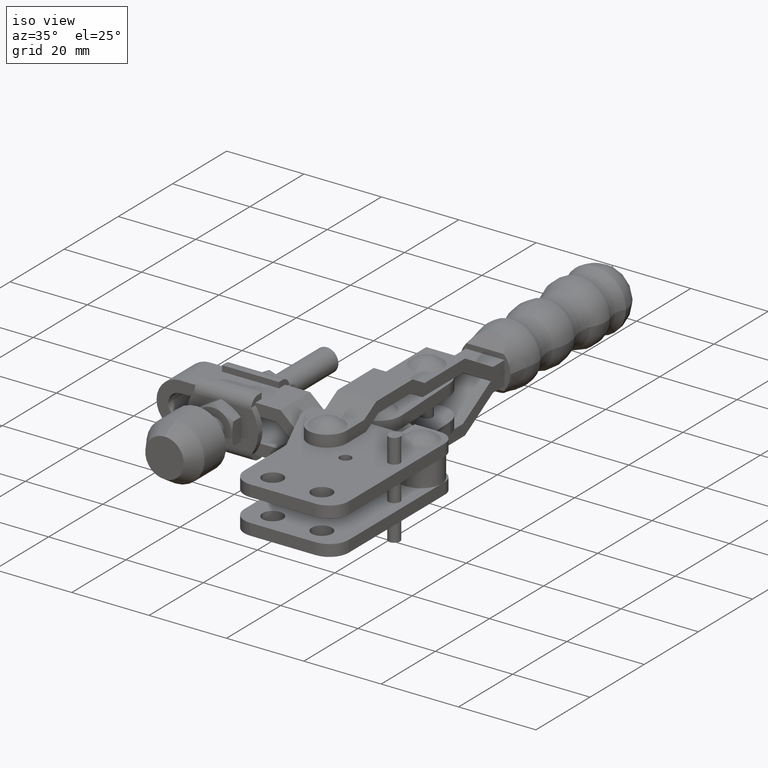
[diagram: clean part render]
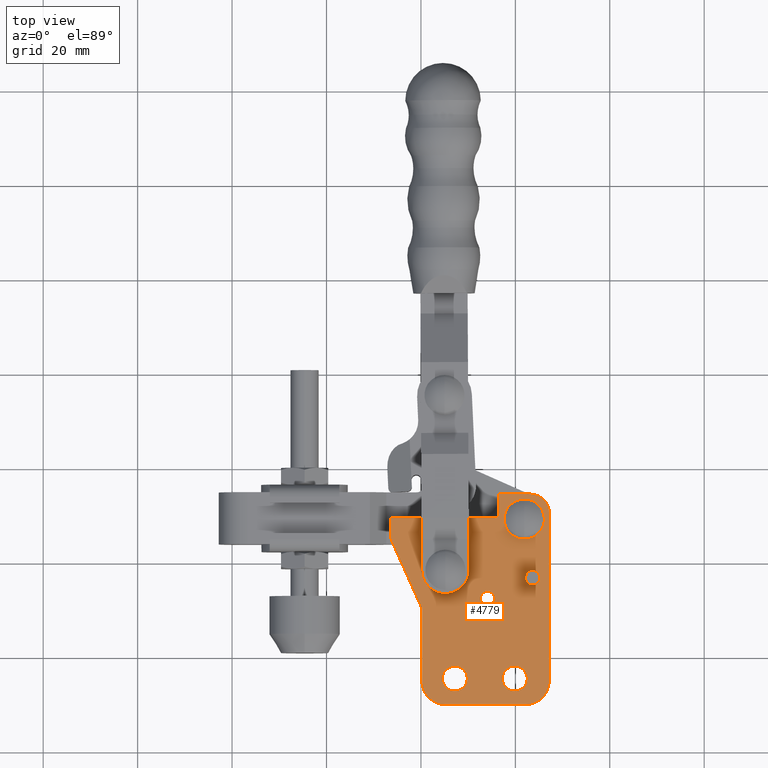
[diagram: tour spotlight — one face highlighted and labeled with its STEP entity id]
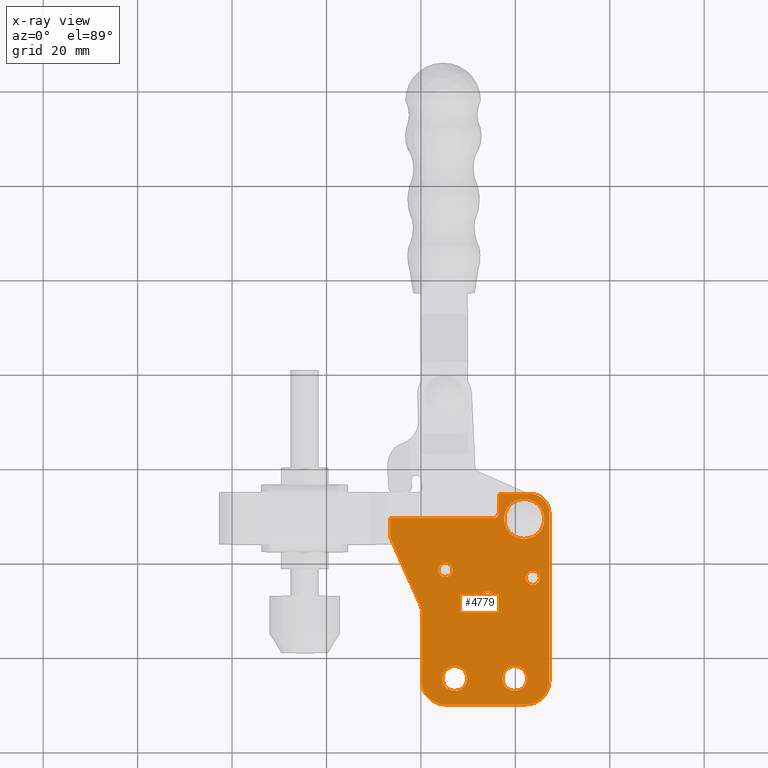
[diagram: x-ray of the same camera — body ghosted, this tour face saturated]
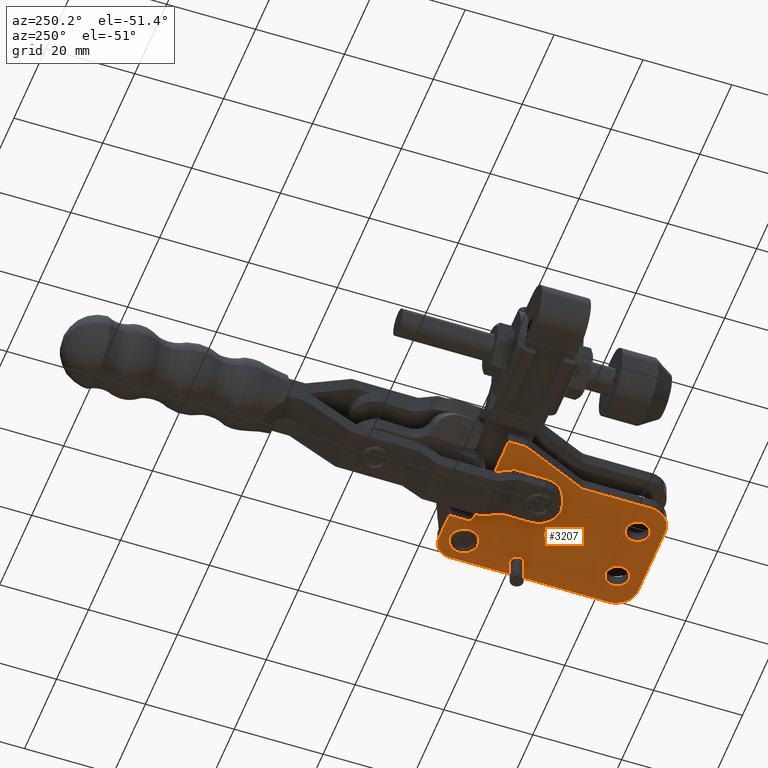
[diagram: tour spotlight — one face highlighted and labeled with its STEP entity id]
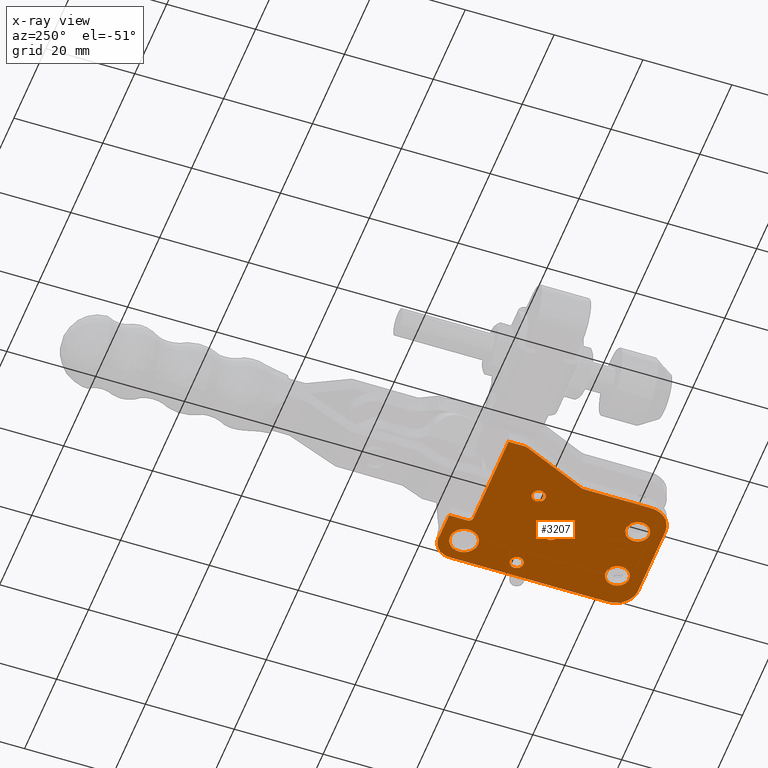
[diagram: x-ray of the same camera — body ghosted, this tour face saturated]
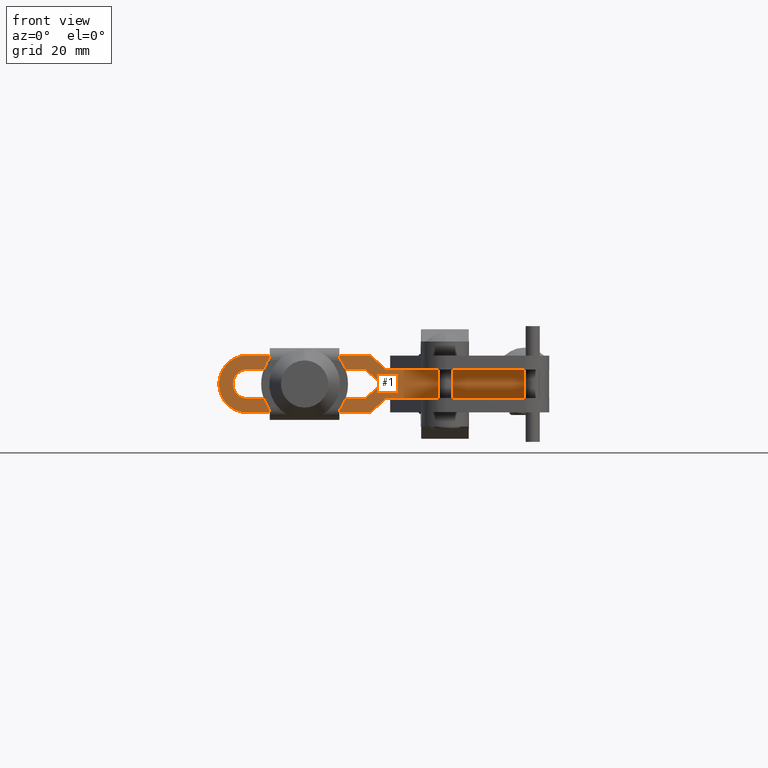
[diagram: tour spotlight — one face highlighted and labeled with its STEP entity id]
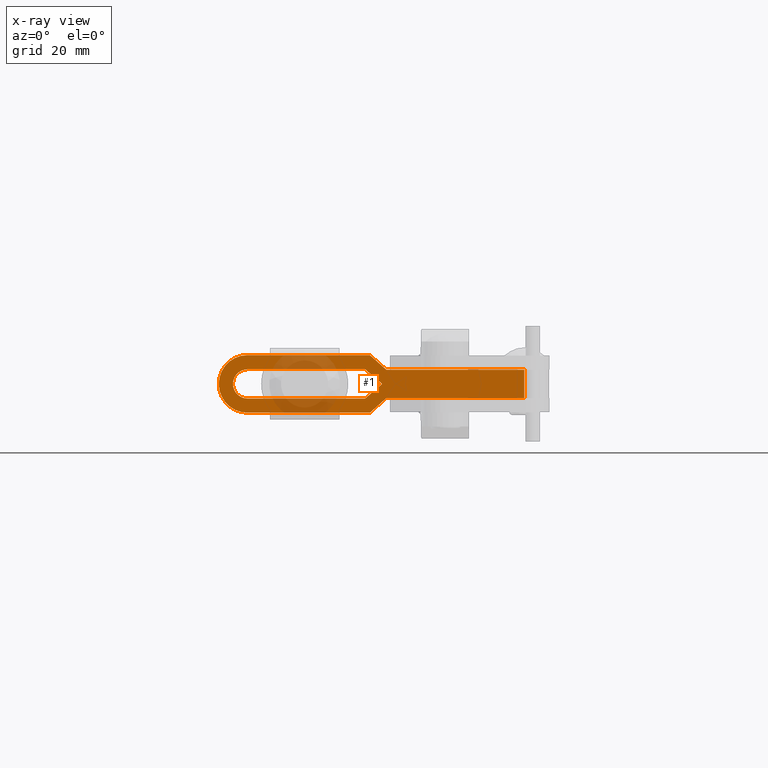
[diagram: x-ray of the same camera — body ghosted, this tour face saturated]
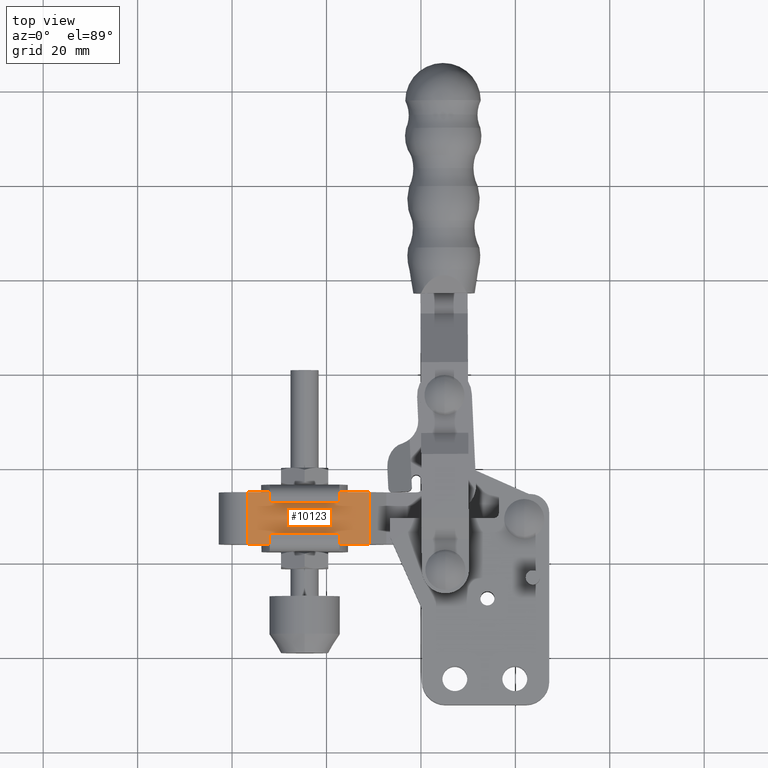
[diagram: tour spotlight — one face highlighted and labeled with its STEP entity id]
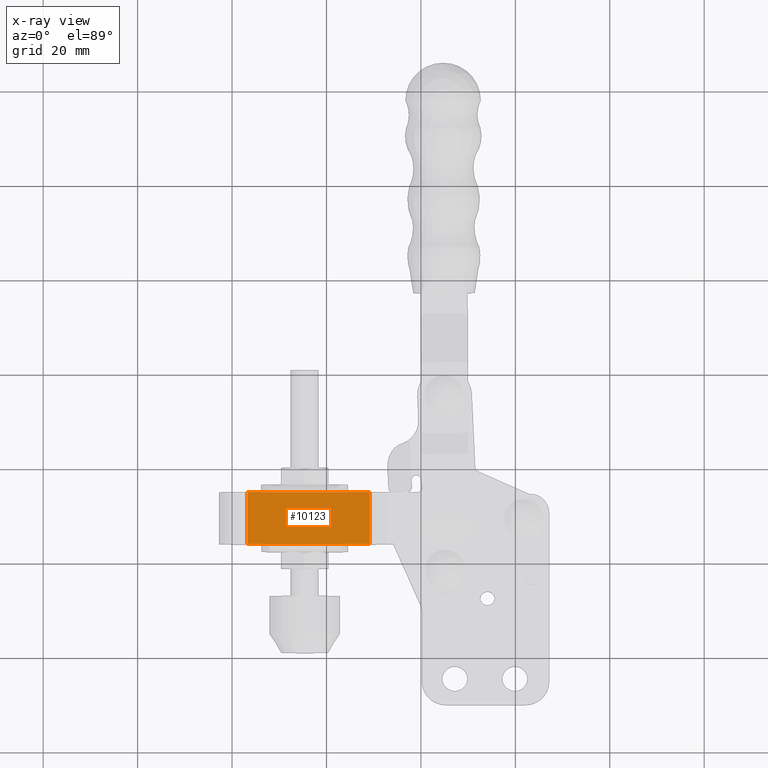
[diagram: x-ray of the same camera — body ghosted, this tour face saturated]
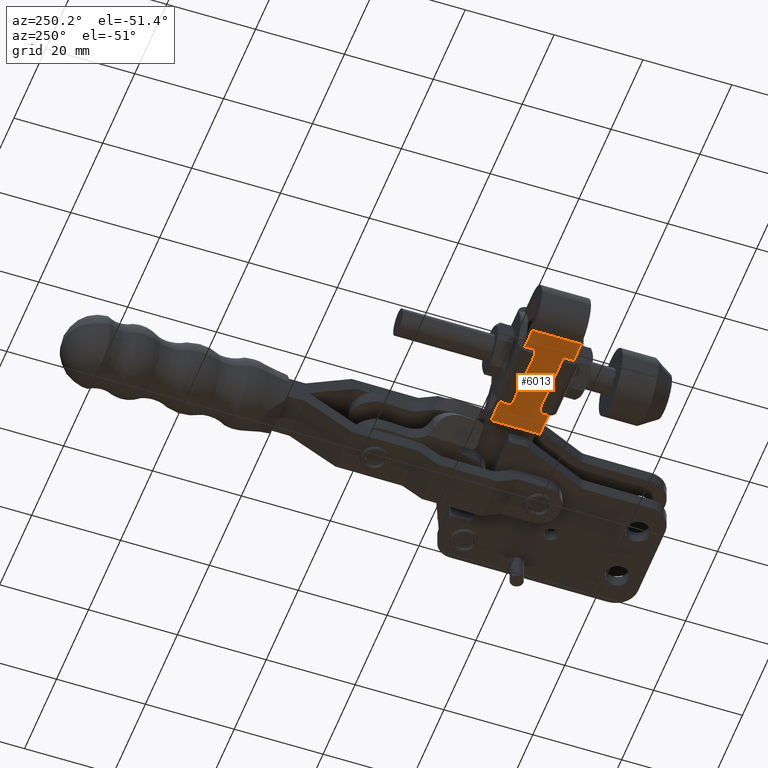
[diagram: tour spotlight — one face highlighted and labeled with its STEP entity id]
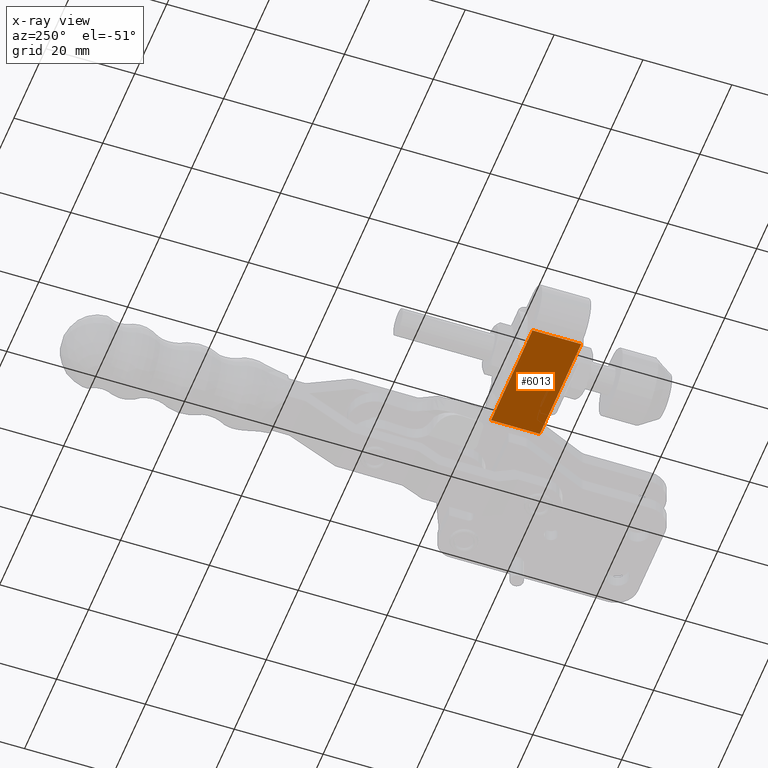
[diagram: x-ray of the same camera — body ghosted, this tour face saturated]
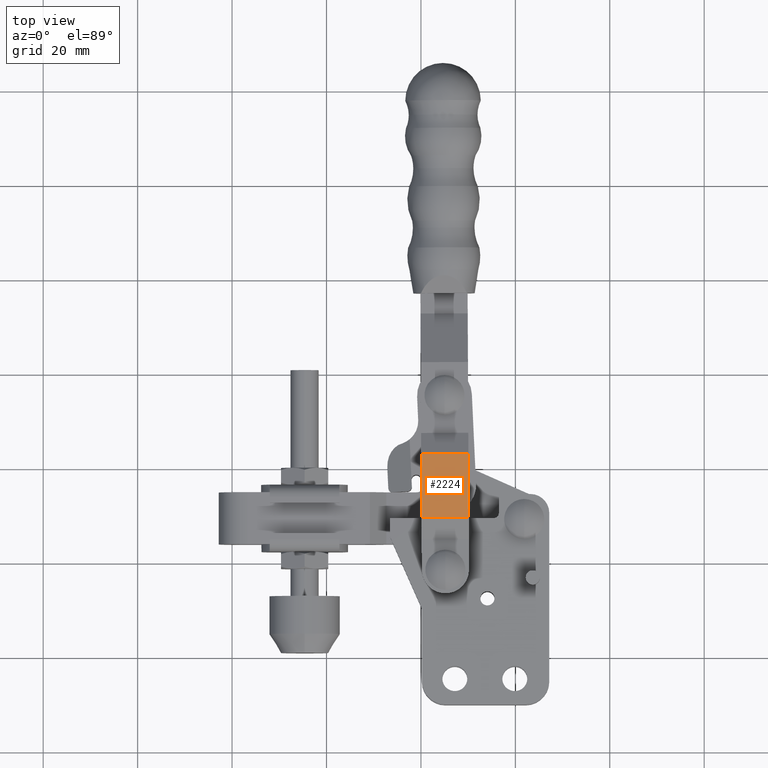
[diagram: tour spotlight — one face highlighted and labeled with its STEP entity id]
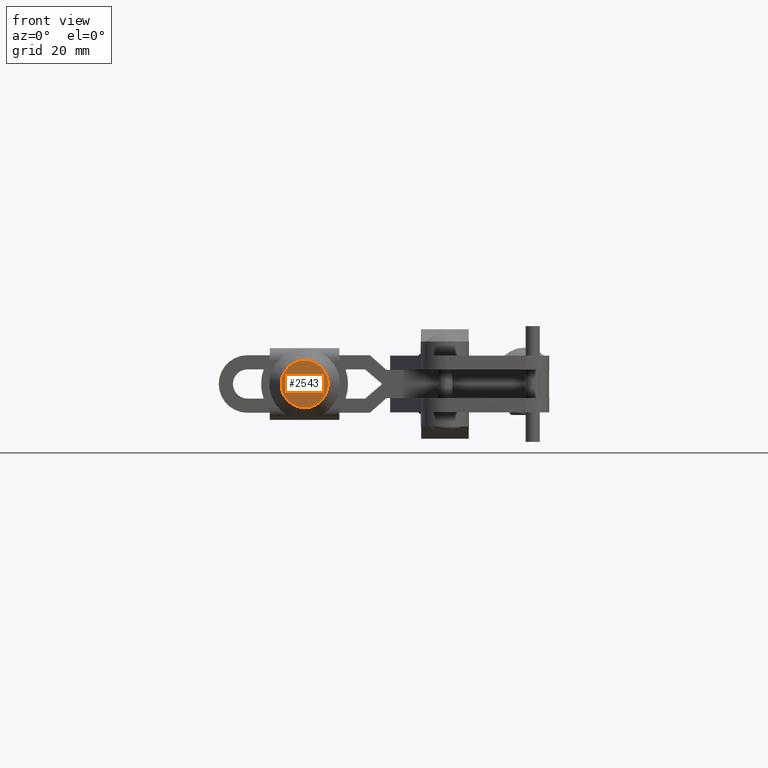
[diagram: tour spotlight — one face highlighted and labeled with its STEP entity id]
A machine part: a face-by-face anatomy tour. The part has 312 B-rep faces; the first image is the clean iso view, then the 7 largest visible faces are spotlighted one at a time (largest first), each with its STEP entity span.

Face 1 — top view, entity #4779. An x-ray twin of the same camera follows (body ghosted, this face saturated) — the face is partly hidden behind the body. In plain terms, the highlighted planar face has unit normal (0, 0, 1).
Definition (entity closure, byte-faithful):
#19 = CARTESIAN_POINT ( 'NONE',  ( 36.48104760106655700, 30.41626203524205300, -19.68006977252662200 ) ) ;
#37 = VERTEX_POINT ( 'NONE', #1327 ) ;
#188 = VECTOR ( 'NONE', #462, 1000.000000000000000 ) ;
#266 = DIRECTION ( 'NONE',  ( 1.000000000000000000, 0.0000000000000000000, 0.0000000000000000000 ) ) ;
#269 = CARTESIAN_POINT ( 'NONE',  ( 13.65395668578131500, 25.00795461789987700, -19.68006977252662200 ) ) ;
#301 = DIRECTION ( 'NONE',  ( 0.0000000000000000000, -1.000000000000000000, 0.0000000000000000000 ) ) ;
#374 = DIRECTION ( 'NONE',  ( 0.0000000000000000000, 0.0000000000000000000, 1.000000000000000000 ) ) ;
#384 = CARTESIAN_POINT ( 'NONE',  ( 47.18104760106652400, -5.103737964757906200, -19.68006977252662200 ) ) ;
#393 = EDGE_CURVE ( 'NONE', #1703, #9090, #4401, .T. ) ;
#410 = VERTEX_POINT ( 'NONE', #619 ) ;
#418 = VERTEX_POINT ( 'NONE', #7856 ) ;
#462 = DIRECTION ( 'NONE',  ( -1.000000000000000000, 0.0000000000000000000, 0.0000000000000000000 ) ) ;
#512 = VERTEX_POINT ( 'NONE', #2701 ) ;
#538 = DIRECTION ( 'NONE',  ( 0.0000000000000000000, 0.0000000000000000000, 1.000000000000000000 ) ) ;
#539 = VERTEX_POINT ( 'NONE', #10461 ) ;
#581 = LINE ( 'NONE', #9794, #2875 ) ;
#619 = CARTESIAN_POINT ( 'NONE',  ( 24.53104760106652500, -4.603737964757912400, -19.68006977252662200 ) ) ;
#676 = VECTOR ( 'NONE', #5570, 1000.000000000000000 ) ;
#685 = CARTESIAN_POINT ( 'NONE',  ( 43.18104760106650300, 34.49626203524209700, -19.68006977252662200 ) ) ;
#690 = CARTESIAN_POINT ( 'NONE',  ( 15.48104760106652100, 25.82142790405146100, -19.68006977252662200 ) ) ;
#719 = CARTESIAN_POINT ( 'NONE',  ( 41.88104760106653400, 29.19626203524208200, -19.68006977252662500 ) ) ;
#792 = DIRECTION ( 'NONE',  ( 1.000000000000000000, 0.0000000000000000000, 0.0000000000000000000 ) ) ;
#825 = CIRCLE ( 'NONE', #8461, 1.500000000000001300 ) ;
#836 = ORIENTED_EDGE ( 'NONE', *, *, #3981, .T. ) ;
#871 = VECTOR ( 'NONE', #3904, 1000.000000000000000 ) ;
#993 = DIRECTION ( 'NONE',  ( 1.000000000000000000, 0.0000000000000000000, 0.0000000000000000000 ) ) ;
#998 = DIRECTION ( 'NONE',  ( 1.000000000000000000, 0.0000000000000000000, 0.0000000000000000000 ) ) ;
#1005 = EDGE_CURVE ( 'NONE', #2609, #6259, #3180, .T. ) ;
#1060 = ORIENTED_EDGE ( 'NONE', *, *, #4473, .F. ) ;
#1109 = CARTESIAN_POINT ( 'NONE',  ( 40.48024752105052900, 30.49626203524207600, -19.68006977252662200 ) ) ;
#1187 = AXIS2_PLACEMENT_3D ( 'NONE', #5050, #2899, #10719 ) ;
#1266 = DIRECTION ( 'NONE',  ( 0.0000000000000000000, 0.0000000000000000000, 1.000000000000000000 ) ) ;
#1297 = AXIS2_PLACEMENT_3D ( 'NONE', #9372, #10391, #1584 ) ;
#1327 = CARTESIAN_POINT ( 'NONE',  ( 47.18104760106653100, 30.49626203524204700, -19.68006977252662200 ) ) ;
#1329 = ORIENTED_EDGE ( 'NONE', *, *, #8128, .F. ) ;
#1366 = CIRCLE ( 'NONE', #9187, 4.250000000000003600 ) ;
#1372 = EDGE_CURVE ( 'NONE', #9090, #1703, #1366, .T. ) ;
#1376 = CIRCLE ( 'NONE', #1297, 5.000000000000004400 ) ;
#1480 = VERTEX_POINT ( 'NONE', #6181 ) ;
#1495 = DIRECTION ( 'NONE',  ( 1.000000000000000000, 0.0000000000000000000, 0.0000000000000000000 ) ) ;
#1567 = EDGE_LOOP ( 'NONE', ( #6646, #4335, #5851, #2823, #836, #6409, #5547, #4805, #7837, #9254, #8264, #7167, #3673, #8146, #10498 ) ) ;
#1584 = DIRECTION ( 'NONE',  ( 1.000000000000000000, 0.0000000000000000000, 0.0000000000000000000 ) ) ;
#1588 = CARTESIAN_POINT ( 'NONE',  ( 35.48124762107060100, 29.39626203524211300, -19.68006977252662200 ) ) ;
#1626 = EDGE_CURVE ( 'NONE', #2061, #5757, #3832, .T. ) ;
#1638 = CARTESIAN_POINT ( 'NONE',  ( 35.58104760106653000, 12.39626203524207800, -19.68006977252662200 ) ) ;
#1701 = ORIENTED_EDGE ( 'NONE', *, *, #7066, .F. ) ;
#1703 = VERTEX_POINT ( 'NONE', #5848 ) ;
#1712 = EDGE_CURVE ( 'NONE', #6259, #7920, #6830, .T. ) ;
#1741 = ORIENTED_EDGE ( 'NONE', *, *, #9314, .F. ) ;
#1747 = DIRECTION ( 'NONE',  ( 1.000000000000000000, 0.0000000000000000000, 0.0000000000000000000 ) ) ;
#1762 = FACE_BOUND ( 'NONE', #6199, .T. ) ;
#1776 = CARTESIAN_POINT ( 'NONE',  ( 13.48104760106651900, 27.89626203524212000, -19.68006977252662200 ) ) ;
#1949 = CIRCLE ( 'NONE', #4702, 3.999999999999996400 ) ;
#1950 = VECTOR ( 'NONE', #10512, 1000.000000000000000 ) ;
#1994 = CARTESIAN_POINT ( 'NONE',  ( 41.88104760106653400, 29.19626203524208200, -19.68006977252662500 ) ) ;
#2020 = PLANE ( 'NONE',  #7313 ) ;
#2061 = VERTEX_POINT ( 'NONE', #19 ) ;
#2127 = DIRECTION ( 'NONE',  ( 1.000000000000000000, 0.0000000000000000000, 0.0000000000000000000 ) ) ;
#2174 = CIRCLE ( 'NONE', #10264, 2.649999999999999500 ) ;
#2178 = VERTEX_POINT ( 'NONE', #9223 ) ;
#2299 = DIRECTION ( 'NONE',  ( 0.0000000000000000000, 0.0000000000000000000, 1.000000000000000000 ) ) ;
#2339 = CARTESIAN_POINT ( 'NONE',  ( 20.18104760106643200, 9.922755272213311900, -19.68006977252662200 ) ) ;
#2345 = VERTEX_POINT ( 'NONE', #6781 ) ;
#2461 = VERTEX_POINT ( 'NONE', #9566 ) ;
#2557 = ORIENTED_EDGE ( 'NONE', *, *, #6185, .F. ) ;
#2596 = ORIENTED_EDGE ( 'NONE', *, *, #3595, .F. ) ;
#2609 = VERTEX_POINT ( 'NONE', #2339 ) ;
#2701 = CARTESIAN_POINT ( 'NONE',  ( 43.18104760106650300, 34.49626203524209700, -19.68006977252662200 ) ) ;
#2823 = ORIENTED_EDGE ( 'NONE', *, *, #1626, .T. ) ;
#2831 = CIRCLE ( 'NONE', #3170, 1.999999999999988000 ) ;
#2849 = VERTEX_POINT ( 'NONE', #7712 ) ;
#2875 = VECTOR ( 'NONE', #4554, 1000.000000000000000 ) ;
#2899 = DIRECTION ( 'NONE',  ( 0.0000000000000000000, -0.0000000000000000000, -1.000000000000000000 ) ) ;
#2979 = LINE ( 'NONE', #1776, #676 ) ;
#3052 = EDGE_CURVE ( 'NONE', #7920, #4907, #8940, .T. ) ;
#3170 = AXIS2_PLACEMENT_3D ( 'NONE', #690, #538, #998 ) ;
#3180 = LINE ( 'NONE', #7263, #871 ) ;
#3256 = EDGE_LOOP ( 'NONE', ( #1060, #7616 ) ) ;
#3257 = CARTESIAN_POINT ( 'NONE',  ( 42.18104760106652400, 16.69626203524207900, -19.68006977252662200 ) ) ;
#3265 = CARTESIAN_POINT ( 'NONE',  ( 37.23104760106652800, -4.603737964757912400, -19.68006977252662200 ) ) ;
#3345 = CARTESIAN_POINT ( 'NONE',  ( 36.48024752105054300, 34.49626203524207600, -19.68006977252662200 ) ) ;
#3374 = DIRECTION ( 'NONE',  ( 0.0000000000000000000, 0.0000000000000000000, 1.000000000000000000 ) ) ;
#3432 = VECTOR ( 'NONE', #301, 1000.000000000000000 ) ;
#3480 = VERTEX_POINT ( 'NONE', #1638 ) ;
#3483 = VERTEX_POINT ( 'NONE', #3257 ) ;
#3491 = DIRECTION ( 'NONE',  ( 1.000000000000000000, 0.0000000000000000000, 0.0000000000000000000 ) ) ;
#3595 = EDGE_CURVE ( 'NONE', #3480, #2849, #6454, .T. ) ;
#3642 = AXIS2_PLACEMENT_3D ( 'NONE', #10248, #1266, #7357 ) ;
#3673 = ORIENTED_EDGE ( 'NONE', *, *, #4360, .T. ) ;
#3705 = DIRECTION ( 'NONE',  ( 1.000000000000000000, 1.020234244308859900E-016, 0.0000000000000000000 ) ) ;
#3723 = CARTESIAN_POINT ( 'NONE',  ( 27.18104760106652800, -4.603737964757912400, -19.68006977252662200 ) ) ;
#3755 = EDGE_CURVE ( 'NONE', #2345, #3483, #9735, .T. ) ;
#3832 = CIRCLE ( 'NONE', #7808, 0.9999999999999662500 ) ;
#3904 = DIRECTION ( 'NONE',  ( -5.421010862427523400E-020, -1.000000000000000000, 0.0000000000000000000 ) ) ;
#3938 = DIRECTION ( 'NONE',  ( 1.000000000000000000, 0.0000000000000000000, 0.0000000000000000000 ) ) ;
#3943 = CARTESIAN_POINT ( 'NONE',  ( 20.00813851635163600, 10.73622855836491800, -19.68006977252662200 ) ) ;
#3981 = EDGE_CURVE ( 'NONE', #5757, #2178, #4807, .T. ) ;
#4072 = AXIS2_PLACEMENT_3D ( 'NONE', #4467, #3374, #7679 ) ;
#4113 = FACE_BOUND ( 'NONE', #5982, .T. ) ;
#4204 = DIRECTION ( 'NONE',  ( 0.0000000000000000000, 0.0000000000000000000, 1.000000000000000000 ) ) ;
#4335 = ORIENTED_EDGE ( 'NONE', *, *, #9162, .T. ) ;
#4360 = EDGE_CURVE ( 'NONE', #4907, #7767, #1376, .T. ) ;
#4393 = DIRECTION ( 'NONE',  ( 0.0000000000000000000, 0.0000000000000000000, 1.000000000000000000 ) ) ;
#4401 = CIRCLE ( 'NONE', #6367, 4.250000000000003600 ) ;
#4453 = CARTESIAN_POINT ( 'NONE',  ( 41.88104760106653400, 24.94626203524208200, -19.68006977252662500 ) ) ;
#4467 = CARTESIAN_POINT ( 'NONE',  ( 25.18104760106643900, -5.103737964757909800, -19.68006977252662200 ) ) ;
#4473 = EDGE_CURVE ( 'NONE', #2461, #1480, #9852, .T. ) ;
#4495 = EDGE_LOOP ( 'NONE', ( #10037, #11203 ) ) ;
#4517 = EDGE_CURVE ( 'NONE', #7767, #37, #581, .T. ) ;
#4554 = DIRECTION ( 'NONE',  ( 9.746977530644687300E-017, 1.000000000000000000, 0.0000000000000000000 ) ) ;
#4662 = DIRECTION ( 'NONE',  ( 0.0000000000000000000, 0.0000000000000000000, 1.000000000000000000 ) ) ;
#4674 = VERTEX_POINT ( 'NONE', #269 ) ;
#4702 = AXIS2_PLACEMENT_3D ( 'NONE', #6311, #4204, #7979 ) ;
#4779 = ADVANCED_FACE ( 'NONE', ( #6404, #8740, #4113, #1762, #10801, #8481, #6128 ), #2020, .T. ) ;
#4800 = CARTESIAN_POINT ( 'NONE',  ( 25.18104760106643500, -10.10373796475791200, -19.68006977252662200 ) ) ;
#4805 = ORIENTED_EDGE ( 'NONE', *, *, #7952, .T. ) ;
#4807 = LINE ( 'NONE', #8813, #188 ) ;
#4907 = VERTEX_POINT ( 'NONE', #8872 ) ;
#4945 = AXIS2_PLACEMENT_3D ( 'NONE', #9180, #6087, #1495 ) ;
#5050 = CARTESIAN_POINT ( 'NONE',  ( 18.18104760106643200, 9.922755272213311900, -19.68006977252662200 ) ) ;
#5064 = DIRECTION ( 'NONE',  ( -0.0000000000000000000, -0.0000000000000000000, 1.000000000000000000 ) ) ;
#5443 = EDGE_CURVE ( 'NONE', #7871, #6112, #8081, .T. ) ;
#5504 = CIRCLE ( 'NONE', #8229, 4.000000000000031100 ) ;
#5531 = CARTESIAN_POINT ( 'NONE',  ( 29.83104760106652600, -4.603737964757912400, -19.68006977252662200 ) ) ;
#5547 = ORIENTED_EDGE ( 'NONE', *, *, #6620, .T. ) ;
#5559 = EDGE_LOOP ( 'NONE', ( #1329, #8356 ) ) ;
#5570 = DIRECTION ( 'NONE',  ( 6.688605832388951300E-015, -1.000000000000000000, 0.0000000000000000000 ) ) ;
#5757 = VERTEX_POINT ( 'NONE', #1588 ) ;
#5819 = CARTESIAN_POINT ( 'NONE',  ( 42.18104760106653100, -10.10373796475791200, -19.68006977252662200 ) ) ;
#5848 = CARTESIAN_POINT ( 'NONE',  ( 41.88104760106653400, 33.44626203524207900, -19.68006977252662500 ) ) ;
#5851 = ORIENTED_EDGE ( 'NONE', *, *, #9899, .T. ) ;
#5860 = EDGE_LOOP ( 'NONE', ( #2557, #1741 ) ) ;
#5936 = AXIS2_PLACEMENT_3D ( 'NONE', #7324, #2299, #792 ) ;
#5982 = EDGE_LOOP ( 'NONE', ( #2596, #1701 ) ) ;
#6031 = CIRCLE ( 'NONE', #9537, 1.500000000000001300 ) ;
#6087 = DIRECTION ( 'NONE',  ( 0.0000000000000000000, 0.0000000000000000000, 1.000000000000000000 ) ) ;
#6112 = VERTEX_POINT ( 'NONE', #7026 ) ;
#6128 = FACE_OUTER_BOUND ( 'NONE', #1567, .T. ) ;
#6155 = DIRECTION ( 'NONE',  ( 0.0000000000000000000, -0.0000000000000000000, -1.000000000000000000 ) ) ;
#6181 = CARTESIAN_POINT ( 'NONE',  ( 23.68104760106653500, 18.39626203524208100, -19.68006977252662200 ) ) ;
#6185 = EDGE_CURVE ( 'NONE', #9172, #410, #2174, .T. ) ;
#6199 = EDGE_LOOP ( 'NONE', ( #10012, #10700 ) ) ;
#6202 = DIRECTION ( 'NONE',  ( 1.000000000000000000, 0.0000000000000000000, 0.0000000000000000000 ) ) ;
#6259 = VERTEX_POINT ( 'NONE', #11146 ) ;
#6311 = CARTESIAN_POINT ( 'NONE',  ( 40.48024752105052900, 30.49626203524207600, -19.68006977252662200 ) ) ;
#6367 = AXIS2_PLACEMENT_3D ( 'NONE', #1994, #10566, #3491 ) ;
#6404 = FACE_BOUND ( 'NONE', #5860, .T. ) ;
#6409 = ORIENTED_EDGE ( 'NONE', *, *, #6455, .T. ) ;
#6447 = EDGE_CURVE ( 'NONE', #1480, #2461, #7652, .T. ) ;
#6454 = CIRCLE ( 'NONE', #3642, 1.500000000000001300 ) ;
#6455 = EDGE_CURVE ( 'NONE', #2178, #539, #2979, .T. ) ;
#6567 = AXIS2_PLACEMENT_3D ( 'NONE', #10756, #7232, #11016 ) ;
#6574 = AXIS2_PLACEMENT_3D ( 'NONE', #9000, #6602, #9889 ) ;
#6596 = DIRECTION ( 'NONE',  ( 1.000000000000000000, 0.0000000000000000000, 0.0000000000000000000 ) ) ;
#6602 = DIRECTION ( 'NONE',  ( 0.0000000000000000000, 0.0000000000000000000, 1.000000000000000000 ) ) ;
#6620 = EDGE_CURVE ( 'NONE', #539, #4674, #2831, .T. ) ;
#6646 = ORIENTED_EDGE ( 'NONE', *, *, #8436, .T. ) ;
#6741 = CIRCLE ( 'NONE', #4945, 2.649999999999999500 ) ;
#6781 = CARTESIAN_POINT ( 'NONE',  ( 45.18104760106652400, 16.69626203524207900, -19.68006977252662200 ) ) ;
#6809 = AXIS2_PLACEMENT_3D ( 'NONE', #8459, #4393, #6202 ) ;
#6830 = CIRCLE ( 'NONE', #4072, 5.000000000000004400 ) ;
#6894 = AXIS2_PLACEMENT_3D ( 'NONE', #8963, #11223, #3938 ) ;
#7026 = CARTESIAN_POINT ( 'NONE',  ( 42.53104760106652500, -4.603737964757912400, -19.68006977252662200 ) ) ;
#7066 = EDGE_CURVE ( 'NONE', #2849, #3480, #825, .T. ) ;
#7167 = ORIENTED_EDGE ( 'NONE', *, *, #3052, .T. ) ;
#7232 = DIRECTION ( 'NONE',  ( 0.0000000000000000000, 0.0000000000000000000, 1.000000000000000000 ) ) ;
#7263 = CARTESIAN_POINT ( 'NONE',  ( 20.18104760106643200, 9.922755272213311900, -19.68006977252662200 ) ) ;
#7313 = AXIS2_PLACEMENT_3D ( 'NONE', #1109, #374, #9181 ) ;
#7324 = CARTESIAN_POINT ( 'NONE',  ( 27.18104760106652800, -4.603737964757912400, -19.68006977252662200 ) ) ;
#7357 = DIRECTION ( 'NONE',  ( 1.000000000000000000, 0.0000000000000000000, 0.0000000000000000000 ) ) ;
#7434 = VECTOR ( 'NONE', #10780, 1000.000000000000100 ) ;
#7616 = ORIENTED_EDGE ( 'NONE', *, *, #6447, .F. ) ;
#7652 = CIRCLE ( 'NONE', #6894, 1.500000000000001300 ) ;
#7679 = DIRECTION ( 'NONE',  ( 1.000000000000000000, 0.0000000000000000000, 0.0000000000000000000 ) ) ;
#7712 = CARTESIAN_POINT ( 'NONE',  ( 32.58104760106652300, 12.39626203524207800, -19.68006977252662200 ) ) ;
#7767 = VERTEX_POINT ( 'NONE', #384 ) ;
#7808 = AXIS2_PLACEMENT_3D ( 'NONE', #8093, #6155, #993 ) ;
#7837 = ORIENTED_EDGE ( 'NONE', *, *, #9843, .T. ) ;
#7856 = CARTESIAN_POINT ( 'NONE',  ( 36.48024752105054300, 34.49626203524207600, -19.68006977252662200 ) ) ;
#7871 = VERTEX_POINT ( 'NONE', #3265 ) ;
#7920 = VERTEX_POINT ( 'NONE', #4800 ) ;
#7952 = EDGE_CURVE ( 'NONE', #4674, #8200, #10023, .T. ) ;
#7979 = DIRECTION ( 'NONE',  ( 1.000000000000000000, 0.0000000000000000000, 0.0000000000000000000 ) ) ;
#8081 = CIRCLE ( 'NONE', #6809, 2.649999999999999500 ) ;
#8093 = CARTESIAN_POINT ( 'NONE',  ( 35.48124762107060100, 30.39626203524212000, -19.68006977252662200 ) ) ;
#8122 = CARTESIAN_POINT ( 'NONE',  ( 43.18104760106650300, 30.49626203524205400, -19.68006977252662200 ) ) ;
#8128 = EDGE_CURVE ( 'NONE', #6112, #7871, #6741, .T. ) ;
#8146 = ORIENTED_EDGE ( 'NONE', *, *, #4517, .T. ) ;
#8155 = CARTESIAN_POINT ( 'NONE',  ( 43.68104760106652400, 16.69626203524207900, -19.68006977252662200 ) ) ;
#8186 = VERTEX_POINT ( 'NONE', #8488 ) ;
#8200 = VERTEX_POINT ( 'NONE', #3943 ) ;
#8229 = AXIS2_PLACEMENT_3D ( 'NONE', #8122, #10440, #266 ) ;
#8264 = ORIENTED_EDGE ( 'NONE', *, *, #1712, .T. ) ;
#8356 = ORIENTED_EDGE ( 'NONE', *, *, #5443, .F. ) ;
#8368 = LINE ( 'NONE', #3345, #3432 ) ;
#8436 = EDGE_CURVE ( 'NONE', #512, #418, #11263, .T. ) ;
#8459 = CARTESIAN_POINT ( 'NONE',  ( 39.88104760106652700, -4.603737964757912400, -19.68006977252662200 ) ) ;
#8461 = AXIS2_PLACEMENT_3D ( 'NONE', #9897, #4662, #10781 ) ;
#8481 = FACE_BOUND ( 'NONE', #4495, .T. ) ;
#8488 = CARTESIAN_POINT ( 'NONE',  ( 36.48024752105052900, 30.49626203524207600, -19.68006977252662200 ) ) ;
#8668 = VECTOR ( 'NONE', #3705, 1000.000000000000000 ) ;
#8740 = FACE_BOUND ( 'NONE', #5559, .T. ) ;
#8766 = EDGE_CURVE ( 'NONE', #3483, #2345, #6031, .T. ) ;
#8813 = CARTESIAN_POINT ( 'NONE',  ( 35.48124762107060100, 29.39626203524211300, -19.68006977252662200 ) ) ;
#8872 = CARTESIAN_POINT ( 'NONE',  ( 42.18104760106652400, -10.10373796475791000, -19.68006977252662200 ) ) ;
#8940 = LINE ( 'NONE', #5819, #8668 ) ;
#8963 = CARTESIAN_POINT ( 'NONE',  ( 25.18104760106653500, 18.39626203524208100, -19.68006977252662200 ) ) ;
#9000 = CARTESIAN_POINT ( 'NONE',  ( 43.68104760106652400, 16.69626203524207900, -19.68006977252662200 ) ) ;
#9090 = VERTEX_POINT ( 'NONE', #4453 ) ;
#9162 = EDGE_CURVE ( 'NONE', #418, #8186, #8368, .T. ) ;
#9172 = VERTEX_POINT ( 'NONE', #5531 ) ;
#9180 = CARTESIAN_POINT ( 'NONE',  ( 39.88104760106652700, -4.603737964757912400, -19.68006977252662200 ) ) ;
#9181 = DIRECTION ( 'NONE',  ( 1.000000000000000000, 0.0000000000000000000, 0.0000000000000000000 ) ) ;
#9187 = AXIS2_PLACEMENT_3D ( 'NONE', #719, #5064, #6596 ) ;
#9196 = CIRCLE ( 'NONE', #1187, 2.000000000000001800 ) ;
#9223 = CARTESIAN_POINT ( 'NONE',  ( 13.48104760106651900, 29.39626203524212000, -19.68006977252662200 ) ) ;
#9254 = ORIENTED_EDGE ( 'NONE', *, *, #1005, .T. ) ;
#9314 = EDGE_CURVE ( 'NONE', #410, #9172, #10816, .T. ) ;
#9372 = CARTESIAN_POINT ( 'NONE',  ( 42.18104760106653100, -5.103737964757907100, -19.68006977252662200 ) ) ;
#9537 = AXIS2_PLACEMENT_3D ( 'NONE', #8155, #10834, #1747 ) ;
#9566 = CARTESIAN_POINT ( 'NONE',  ( 26.68104760106653500, 18.39626203524208100, -19.68006977252662200 ) ) ;
#9593 = DIRECTION ( 'NONE',  ( 0.0000000000000000000, 0.0000000000000000000, 1.000000000000000000 ) ) ;
#9735 = CIRCLE ( 'NONE', #6574, 1.500000000000001300 ) ;
#9794 = CARTESIAN_POINT ( 'NONE',  ( 47.18104760106653100, 30.49626203524204700, -19.68006977252662200 ) ) ;
#9843 = EDGE_CURVE ( 'NONE', #8200, #2609, #9196, .T. ) ;
#9852 = CIRCLE ( 'NONE', #6567, 1.500000000000001300 ) ;
#9889 = DIRECTION ( 'NONE',  ( 1.000000000000000000, 0.0000000000000000000, 0.0000000000000000000 ) ) ;
#9897 = CARTESIAN_POINT ( 'NONE',  ( 34.08104760106652300, 12.39626203524207800, -19.68006977252662200 ) ) ;
#9899 = EDGE_CURVE ( 'NONE', #8186, #2061, #1949, .T. ) ;
#9942 = EDGE_CURVE ( 'NONE', #37, #512, #5504, .T. ) ;
#10012 = ORIENTED_EDGE ( 'NONE', *, *, #3755, .F. ) ;
#10023 = LINE ( 'NONE', #10932, #7434 ) ;
#10037 = ORIENTED_EDGE ( 'NONE', *, *, #393, .F. ) ;
#10248 = CARTESIAN_POINT ( 'NONE',  ( 34.08104760106652300, 12.39626203524207800, -19.68006977252662200 ) ) ;
#10264 = AXIS2_PLACEMENT_3D ( 'NONE', #3723, #9593, #2127 ) ;
#10391 = DIRECTION ( 'NONE',  ( 0.0000000000000000000, 0.0000000000000000000, 1.000000000000000000 ) ) ;
#10440 = DIRECTION ( 'NONE',  ( 0.0000000000000000000, 0.0000000000000000000, 1.000000000000000000 ) ) ;
#10461 = CARTESIAN_POINT ( 'NONE',  ( 13.48104760106653400, 25.82142790405147200, -19.68006977252662200 ) ) ;
#10498 = ORIENTED_EDGE ( 'NONE', *, *, #9942, .T. ) ;
#10512 = DIRECTION ( 'NONE',  ( -1.000000000000000000, -2.569179678030276000E-015, 0.0000000000000000000 ) ) ;
#10566 = DIRECTION ( 'NONE',  ( -0.0000000000000000000, -0.0000000000000000000, 1.000000000000000000 ) ) ;
#10700 = ORIENTED_EDGE ( 'NONE', *, *, #8766, .F. ) ;
#10719 = DIRECTION ( 'NONE',  ( 1.000000000000000000, 0.0000000000000000000, 0.0000000000000000000 ) ) ;
#10756 = CARTESIAN_POINT ( 'NONE',  ( 25.18104760106653500, 18.39626203524208100, -19.68006977252662200 ) ) ;
#10780 = DIRECTION ( 'NONE',  ( 0.4067366430757993200, -0.9135454576426013100, 0.0000000000000000000 ) ) ;
#10781 = DIRECTION ( 'NONE',  ( 1.000000000000000000, 0.0000000000000000000, 0.0000000000000000000 ) ) ;
#10801 = FACE_BOUND ( 'NONE', #3256, .T. ) ;
#10816 = CIRCLE ( 'NONE', #5936, 2.649999999999999500 ) ;
#10834 = DIRECTION ( 'NONE',  ( 0.0000000000000000000, 0.0000000000000000000, 1.000000000000000000 ) ) ;
#10932 = CARTESIAN_POINT ( 'NONE',  ( 13.65395668578131500, 25.00795461789987700, -19.68006977252662200 ) ) ;
#11016 = DIRECTION ( 'NONE',  ( 1.000000000000000000, 0.0000000000000000000, 0.0000000000000000000 ) ) ;
#11146 = CARTESIAN_POINT ( 'NONE',  ( 20.18104760106643200, -5.103737964757908900, -19.68006977252662200 ) ) ;
#11203 = ORIENTED_EDGE ( 'NONE', *, *, #1372, .F. ) ;
#11223 = DIRECTION ( 'NONE',  ( 0.0000000000000000000, 0.0000000000000000000, 1.000000000000000000 ) ) ;
#11263 = LINE ( 'NONE', #685, #1950 ) ;

Face 2 — auxiliary view, entity #3207. An x-ray twin of the same camera follows (body ghosted, this face saturated) — the face is partly hidden behind the body. In plain terms, the highlighted planar face has unit normal (0, 0, 1).
Definition (entity closure, byte-faithful):
#73 = CARTESIAN_POINT ( 'NONE',  ( 43.18104760106650300, 30.49626203524205800, -31.68006977252661800 ) ) ;
#107 = CARTESIAN_POINT ( 'NONE',  ( 40.48024752105052900, 30.49626203524207900, -31.68006977252661800 ) ) ;
#159 = AXIS2_PLACEMENT_3D ( 'NONE', #1214, #3288, #4817 ) ;
#282 = EDGE_CURVE ( 'NONE', #3231, #3811, #1823, .T. ) ;
#305 = EDGE_CURVE ( 'NONE', #6935, #8234, #8534, .T. ) ;
#366 = EDGE_CURVE ( 'NONE', #8339, #1873, #5668, .T. ) ;
#432 = VERTEX_POINT ( 'NONE', #8549 ) ;
#441 = CIRCLE ( 'NONE', #3306, 1.500000000000001300 ) ;
#470 = EDGE_CURVE ( 'NONE', #432, #940, #8255, .T. ) ;
#489 = AXIS2_PLACEMENT_3D ( 'NONE', #3502, #5549, #5804 ) ;
#549 = DIRECTION ( 'NONE',  ( 0.0000000000000000000, 0.0000000000000000000, 1.000000000000000000 ) ) ;
#555 = AXIS2_PLACEMENT_3D ( 'NONE', #10296, #549, #4184 ) ;
#798 = VERTEX_POINT ( 'NONE', #9389 ) ;
#803 = CARTESIAN_POINT ( 'NONE',  ( 20.00813851635163600, 10.73622855836492100, -31.68006977252661800 ) ) ;
#897 = FACE_BOUND ( 'NONE', #5253, .T. ) ;
#916 = EDGE_CURVE ( 'NONE', #10993, #11180, #1664, .T. ) ;
#940 = VERTEX_POINT ( 'NONE', #6055 ) ;
#1069 = CIRCLE ( 'NONE', #3212, 2.649999999999999500 ) ;
#1203 = DIRECTION ( 'NONE',  ( 9.746977530644687300E-017, 1.000000000000000000, 0.0000000000000000000 ) ) ;
#1214 = CARTESIAN_POINT ( 'NONE',  ( 15.48104760106652100, 25.82142790405146500, -31.68006977252661800 ) ) ;
#1215 = ORIENTED_EDGE ( 'NONE', *, *, #916, .F. ) ;
#1373 = DIRECTION ( 'NONE',  ( 1.000000000000000000, 1.020234244308859900E-016, 0.0000000000000000000 ) ) ;
#1488 = AXIS2_PLACEMENT_3D ( 'NONE', #9806, #3623, #3794 ) ;
#1539 = DIRECTION ( 'NONE',  ( 6.688605832388951300E-015, -1.000000000000000000, 0.0000000000000000000 ) ) ;
#1590 = ORIENTED_EDGE ( 'NONE', *, *, #6110, .F. ) ;
#1616 = CIRCLE ( 'NONE', #3007, 0.9999999999999662500 ) ;
#1655 = CIRCLE ( 'NONE', #3504, 2.649999999999999500 ) ;
#1664 = CIRCLE ( 'NONE', #5152, 4.000000000000031100 ) ;
#1733 = VERTEX_POINT ( 'NONE', #4609 ) ;
#1744 = VERTEX_POINT ( 'NONE', #9955 ) ;
#1823 = CIRCLE ( 'NONE', #10721, 2.000000000000001800 ) ;
#1873 = VERTEX_POINT ( 'NONE', #7339 ) ;
#1926 = DIRECTION ( 'NONE',  ( 1.000000000000000000, 0.0000000000000000000, 0.0000000000000000000 ) ) ;
#2074 = CARTESIAN_POINT ( 'NONE',  ( 29.83104760106652600, -4.603737964757912400, -31.68006977252661800 ) ) ;
#2104 = FACE_BOUND ( 'NONE', #4009, .T. ) ;
#2145 = DIRECTION ( 'NONE',  ( 0.0000000000000000000, 0.0000000000000000000, 1.000000000000000000 ) ) ;
#2191 = CARTESIAN_POINT ( 'NONE',  ( 35.48124762107060100, 29.39626203524211700, -31.68006977252661800 ) ) ;
#2219 = DIRECTION ( 'NONE',  ( 1.000000000000000000, 0.0000000000000000000, 0.0000000000000000000 ) ) ;
#2383 = FACE_BOUND ( 'NONE', #8746, .T. ) ;
#2400 = EDGE_CURVE ( 'NONE', #10318, #798, #1069, .T. ) ;
#2597 = DIRECTION ( 'NONE',  ( -5.421010862427523400E-020, -1.000000000000000000, 0.0000000000000000000 ) ) ;
#2605 = PLANE ( 'NONE',  #5831 ) ;
#2683 = CARTESIAN_POINT ( 'NONE',  ( 42.18104760106652400, -10.10373796475790600, -31.68006977252661800 ) ) ;
#2691 = VERTEX_POINT ( 'NONE', #4200 ) ;
#2703 = CARTESIAN_POINT ( 'NONE',  ( 43.18104760106650300, 34.49626203524210400, -31.68006977252661800 ) ) ;
#2736 = EDGE_CURVE ( 'NONE', #9641, #3231, #9224, .T. ) ;
#2847 = EDGE_LOOP ( 'NONE', ( #6796, #7102, #8352, #1215, #8500, #5080, #4190, #6291, #8788, #9663, #8008, #5431, #6543, #1590, #11206 ) ) ;
#2913 = VECTOR ( 'NONE', #2597, 1000.000000000000000 ) ;
#2993 = ORIENTED_EDGE ( 'NONE', *, *, #366, .F. ) ;
#3007 = AXIS2_PLACEMENT_3D ( 'NONE', #6343, #3466, #4096 ) ;
#3032 = DIRECTION ( 'NONE',  ( 1.000000000000000000, 0.0000000000000000000, 0.0000000000000000000 ) ) ;
#3133 = VERTEX_POINT ( 'NONE', #8999 ) ;
#3207 = ADVANCED_FACE ( 'NONE', ( #2383, #4410, #897, #6763, #2104, #11134, #8792 ), #2605, .F. ) ;
#3212 = AXIS2_PLACEMENT_3D ( 'NONE', #5882, #8202, #5190 ) ;
#3231 = VERTEX_POINT ( 'NONE', #803 ) ;
#3288 = DIRECTION ( 'NONE',  ( 0.0000000000000000000, 0.0000000000000000000, 1.000000000000000000 ) ) ;
#3306 = AXIS2_PLACEMENT_3D ( 'NONE', #11060, #10358, #3902 ) ;
#3320 = LINE ( 'NONE', #9118, #5365 ) ;
#3323 = DIRECTION ( 'NONE',  ( 1.000000000000000000, 0.0000000000000000000, 0.0000000000000000000 ) ) ;
#3326 = CIRCLE ( 'NONE', #489, 1.500000000000001300 ) ;
#3387 = EDGE_CURVE ( 'NONE', #7795, #10993, #9748, .T. ) ;
#3466 = DIRECTION ( 'NONE',  ( 0.0000000000000000000, -0.0000000000000000000, -1.000000000000000000 ) ) ;
#3482 = EDGE_CURVE ( 'NONE', #7128, #9641, #9600, .T. ) ;
#3502 = CARTESIAN_POINT ( 'NONE',  ( 34.08104760106652300, 12.39626203524207800, -31.68006977252661800 ) ) ;
#3504 = AXIS2_PLACEMENT_3D ( 'NONE', #7123, #10460, #3032 ) ;
#3523 = DIRECTION ( 'NONE',  ( 0.0000000000000000000, 0.0000000000000000000, 1.000000000000000000 ) ) ;
#3527 = VERTEX_POINT ( 'NONE', #4894 ) ;
#3623 = DIRECTION ( 'NONE',  ( 0.0000000000000000000, 0.0000000000000000000, 1.000000000000000000 ) ) ;
#3731 = AXIS2_PLACEMENT_3D ( 'NONE', #6976, #9161, #9674 ) ;
#3757 = EDGE_CURVE ( 'NONE', #8025, #10625, #5652, .T. ) ;
#3794 = DIRECTION ( 'NONE',  ( 1.000000000000000000, 0.0000000000000000000, 0.0000000000000000000 ) ) ;
#3811 = VERTEX_POINT ( 'NONE', #10662 ) ;
#3902 = DIRECTION ( 'NONE',  ( 1.000000000000000000, 0.0000000000000000000, 0.0000000000000000000 ) ) ;
#3909 = ORIENTED_EDGE ( 'NONE', *, *, #3757, .T. ) ;
#4009 = EDGE_LOOP ( 'NONE', ( #10238, #3909 ) ) ;
#4096 = DIRECTION ( 'NONE',  ( 1.000000000000000000, 0.0000000000000000000, 0.0000000000000000000 ) ) ;
#4102 = ORIENTED_EDGE ( 'NONE', *, *, #4890, .T. ) ;
#4184 = DIRECTION ( 'NONE',  ( 1.000000000000000000, 0.0000000000000000000, 0.0000000000000000000 ) ) ;
#4190 = ORIENTED_EDGE ( 'NONE', *, *, #8230, .F. ) ;
#4195 = CARTESIAN_POINT ( 'NONE',  ( 36.48024752105054300, 34.49626203524207600, -31.68006977252661800 ) ) ;
#4200 = CARTESIAN_POINT ( 'NONE',  ( 35.48124762107060100, 29.39626203524211700, -31.68006977252661800 ) ) ;
#4407 = CARTESIAN_POINT ( 'NONE',  ( 43.18104760106650300, 34.49626203524210400, -31.68006977252661800 ) ) ;
#4408 = CARTESIAN_POINT ( 'NONE',  ( 25.18104760106643900, -5.103737964757906200, -31.68006977252661800 ) ) ;
#4410 = FACE_BOUND ( 'NONE', #8868, .T. ) ;
#4430 = DIRECTION ( 'NONE',  ( 1.000000000000000000, 0.0000000000000000000, 0.0000000000000000000 ) ) ;
#4506 = VECTOR ( 'NONE', #8258, 1000.000000000000000 ) ;
#4609 = CARTESIAN_POINT ( 'NONE',  ( 42.18104760106652400, 16.69626203524207900, -31.68006977252661800 ) ) ;
#4626 = AXIS2_PLACEMENT_3D ( 'NONE', #7885, #9163, #1926 ) ;
#4659 = CARTESIAN_POINT ( 'NONE',  ( 37.23104760106652800, -4.603737964757912400, -31.68006977252661800 ) ) ;
#4663 = ORIENTED_EDGE ( 'NONE', *, *, #305, .T. ) ;
#4677 = CARTESIAN_POINT ( 'NONE',  ( 18.18104760106643200, 9.922755272213315400, -31.68006977252661800 ) ) ;
#4708 = CARTESIAN_POINT ( 'NONE',  ( 34.08104760106652300, 12.39626203524207800, -31.68006977252661800 ) ) ;
#4763 = VECTOR ( 'NONE', #10869, 1000.000000000000000 ) ;
#4804 = EDGE_CURVE ( 'NONE', #1744, #7128, #6592, .T. ) ;
#4809 = CARTESIAN_POINT ( 'NONE',  ( 41.88104760106653400, 29.19626203524208200, -31.68006977252661800 ) ) ;
#4817 = DIRECTION ( 'NONE',  ( 1.000000000000000000, 0.0000000000000000000, 0.0000000000000000000 ) ) ;
#4890 = EDGE_CURVE ( 'NONE', #8234, #6935, #9871, .T. ) ;
#4894 = CARTESIAN_POINT ( 'NONE',  ( 45.18104760106652400, 16.69626203524207900, -31.68006977252661800 ) ) ;
#4961 = DIRECTION ( 'NONE',  ( 0.0000000000000000000, 0.0000000000000000000, 1.000000000000000000 ) ) ;
#5016 = CARTESIAN_POINT ( 'NONE',  ( 47.18104760106653100, 30.49626203524205100, -31.68006977252661800 ) ) ;
#5027 = DIRECTION ( 'NONE',  ( 0.0000000000000000000, 0.0000000000000000000, 1.000000000000000000 ) ) ;
#5080 = ORIENTED_EDGE ( 'NONE', *, *, #6294, .F. ) ;
#5102 = DIRECTION ( 'NONE',  ( 1.000000000000000000, 0.0000000000000000000, 0.0000000000000000000 ) ) ;
#5119 = DIRECTION ( 'NONE',  ( 1.000000000000000000, 0.0000000000000000000, 0.0000000000000000000 ) ) ;
#5152 = AXIS2_PLACEMENT_3D ( 'NONE', #73, #5027, #6806 ) ;
#5157 = EDGE_CURVE ( 'NONE', #798, #10318, #1655, .T. ) ;
#5162 = CARTESIAN_POINT ( 'NONE',  ( 38.73104760106653500, 29.19626203524208200, -31.68006977252661800 ) ) ;
#5190 = DIRECTION ( 'NONE',  ( 1.000000000000000000, 0.0000000000000000000, 0.0000000000000000000 ) ) ;
#5246 = LINE ( 'NONE', #8204, #2913 ) ;
#5253 = EDGE_LOOP ( 'NONE', ( #7970, #7062 ) ) ;
#5358 = AXIS2_PLACEMENT_3D ( 'NONE', #10164, #10984, #8274 ) ;
#5363 = EDGE_CURVE ( 'NONE', #10625, #8025, #441, .T. ) ;
#5365 = VECTOR ( 'NONE', #1373, 1000.000000000000000 ) ;
#5431 = ORIENTED_EDGE ( 'NONE', *, *, #3482, .F. ) ;
#5441 = CARTESIAN_POINT ( 'NONE',  ( 40.48024752105052900, 30.49626203524207900, -31.68006977252661800 ) ) ;
#5469 = CARTESIAN_POINT ( 'NONE',  ( 13.48104760106653400, 25.82142790405147500, -31.68006977252661800 ) ) ;
#5481 = CIRCLE ( 'NONE', #1488, 1.500000000000001300 ) ;
#5513 = EDGE_CURVE ( 'NONE', #1873, #8339, #9846, .T. ) ;
#5549 = DIRECTION ( 'NONE',  ( 0.0000000000000000000, 0.0000000000000000000, 1.000000000000000000 ) ) ;
#5652 = CIRCLE ( 'NONE', #7756, 1.500000000000001300 ) ;
#5668 = CIRCLE ( 'NONE', #4626, 3.149999999999999900 ) ;
#5783 = CIRCLE ( 'NONE', #6227, 1.500000000000001300 ) ;
#5804 = DIRECTION ( 'NONE',  ( 1.000000000000000000, 0.0000000000000000000, 0.0000000000000000000 ) ) ;
#5831 = AXIS2_PLACEMENT_3D ( 'NONE', #107, #2145, #5119 ) ;
#5842 = EDGE_LOOP ( 'NONE', ( #9451, #7299 ) ) ;
#5882 = CARTESIAN_POINT ( 'NONE',  ( 27.18104760106652800, -4.603737964757912400, -31.68006977252661800 ) ) ;
#5903 = DIRECTION ( 'NONE',  ( 1.000000000000000000, 0.0000000000000000000, 0.0000000000000000000 ) ) ;
#5967 = ORIENTED_EDGE ( 'NONE', *, *, #5513, .F. ) ;
#5987 = CIRCLE ( 'NONE', #5358, 5.000000000000004400 ) ;
#6055 = CARTESIAN_POINT ( 'NONE',  ( 36.48104760106655700, 30.41626203524205600, -31.68006977252661800 ) ) ;
#6110 = EDGE_CURVE ( 'NONE', #2691, #1744, #7665, .T. ) ;
#6145 = DIRECTION ( 'NONE',  ( -0.0000000000000000000, -0.0000000000000000000, -1.000000000000000000 ) ) ;
#6227 = AXIS2_PLACEMENT_3D ( 'NONE', #4708, #10856, #5102 ) ;
#6255 = EDGE_CURVE ( 'NONE', #940, #2691, #1616, .T. ) ;
#6291 = ORIENTED_EDGE ( 'NONE', *, *, #8391, .F. ) ;
#6294 = EDGE_CURVE ( 'NONE', #6374, #7795, #5987, .T. ) ;
#6343 = CARTESIAN_POINT ( 'NONE',  ( 35.48124762107060100, 30.39626203524212400, -31.68006977252661800 ) ) ;
#6374 = VERTEX_POINT ( 'NONE', #2683 ) ;
#6506 = CARTESIAN_POINT ( 'NONE',  ( 23.68104760106653500, 18.39626203524208100, -31.68006977252661800 ) ) ;
#6543 = ORIENTED_EDGE ( 'NONE', *, *, #4804, .F. ) ;
#6592 = LINE ( 'NONE', #10312, #8912 ) ;
#6612 = CARTESIAN_POINT ( 'NONE',  ( 25.18104760106643500, -10.10373796475790800, -31.68006977252661800 ) ) ;
#6728 = CARTESIAN_POINT ( 'NONE',  ( 25.18104760106653500, 18.39626203524208100, -31.68006977252661800 ) ) ;
#6763 = FACE_BOUND ( 'NONE', #5842, .T. ) ;
#6796 = ORIENTED_EDGE ( 'NONE', *, *, #470, .F. ) ;
#6806 = DIRECTION ( 'NONE',  ( 1.000000000000000000, 0.0000000000000000000, 0.0000000000000000000 ) ) ;
#6871 = CIRCLE ( 'NONE', #9991, 5.000000000000004400 ) ;
#6935 = VERTEX_POINT ( 'NONE', #4659 ) ;
#6972 = VECTOR ( 'NONE', #7799, 1000.000000000000000 ) ;
#6976 = CARTESIAN_POINT ( 'NONE',  ( 39.88104760106652700, -4.603737964757912400, -31.68006977252661800 ) ) ;
#7062 = ORIENTED_EDGE ( 'NONE', *, *, #7913, .T. ) ;
#7102 = ORIENTED_EDGE ( 'NONE', *, *, #10774, .T. ) ;
#7123 = CARTESIAN_POINT ( 'NONE',  ( 27.18104760106652800, -4.603737964757912400, -31.68006977252661800 ) ) ;
#7128 = VERTEX_POINT ( 'NONE', #5469 ) ;
#7249 = CARTESIAN_POINT ( 'NONE',  ( 36.48024752105054300, 34.49626203524207600, -31.68006977252661800 ) ) ;
#7265 = VERTEX_POINT ( 'NONE', #6612 ) ;
#7299 = ORIENTED_EDGE ( 'NONE', *, *, #8219, .T. ) ;
#7314 = CARTESIAN_POINT ( 'NONE',  ( 26.68104760106653500, 18.39626203524208100, -31.68006977252661800 ) ) ;
#7339 = CARTESIAN_POINT ( 'NONE',  ( 45.03104760106653300, 29.19626203524208200, -31.68006977252661800 ) ) ;
#7452 = VECTOR ( 'NONE', #1203, 1000.000000000000000 ) ;
#7665 = LINE ( 'NONE', #2191, #4763 ) ;
#7756 = AXIS2_PLACEMENT_3D ( 'NONE', #6728, #4961, #3323 ) ;
#7795 = VERTEX_POINT ( 'NONE', #9210 ) ;
#7799 = DIRECTION ( 'NONE',  ( -1.000000000000000000, -2.569179678030276000E-015, 0.0000000000000000000 ) ) ;
#7885 = CARTESIAN_POINT ( 'NONE',  ( 41.88104760106653400, 29.19626203524208200, -31.68006977252661800 ) ) ;
#7913 = EDGE_CURVE ( 'NONE', #10513, #3133, #3326, .T. ) ;
#7970 = ORIENTED_EDGE ( 'NONE', *, *, #8552, .T. ) ;
#8008 = ORIENTED_EDGE ( 'NONE', *, *, #2736, .F. ) ;
#8025 = VERTEX_POINT ( 'NONE', #6506 ) ;
#8202 = DIRECTION ( 'NONE',  ( 0.0000000000000000000, 0.0000000000000000000, 1.000000000000000000 ) ) ;
#8204 = CARTESIAN_POINT ( 'NONE',  ( 20.18104760106643200, 9.922755272213315400, -31.68006977252661800 ) ) ;
#8219 = EDGE_CURVE ( 'NONE', #1733, #3527, #10013, .T. ) ;
#8230 = EDGE_CURVE ( 'NONE', #7265, #6374, #3320, .T. ) ;
#8234 = VERTEX_POINT ( 'NONE', #9008 ) ;
#8255 = CIRCLE ( 'NONE', #9904, 3.999999999999996400 ) ;
#8258 = DIRECTION ( 'NONE',  ( 0.0000000000000000000, 1.000000000000000000, -0.0000000000000000000 ) ) ;
#8270 = CARTESIAN_POINT ( 'NONE',  ( 13.65395668578131500, 25.00795461789988000, -31.68006977252661800 ) ) ;
#8274 = DIRECTION ( 'NONE',  ( 1.000000000000000000, 0.0000000000000000000, 0.0000000000000000000 ) ) ;
#8288 = CARTESIAN_POINT ( 'NONE',  ( 43.68104760106652400, 16.69626203524207900, -31.68006977252661800 ) ) ;
#8339 = VERTEX_POINT ( 'NONE', #5162 ) ;
#8352 = ORIENTED_EDGE ( 'NONE', *, *, #10924, .F. ) ;
#8391 = EDGE_CURVE ( 'NONE', #10797, #7265, #6871, .T. ) ;
#8455 = AXIS2_PLACEMENT_3D ( 'NONE', #8288, #10858, #5903 ) ;
#8500 = ORIENTED_EDGE ( 'NONE', *, *, #3387, .F. ) ;
#8522 = DIRECTION ( 'NONE',  ( 1.000000000000000000, 0.0000000000000000000, 0.0000000000000000000 ) ) ;
#8534 = CIRCLE ( 'NONE', #555, 2.649999999999999500 ) ;
#8549 = CARTESIAN_POINT ( 'NONE',  ( 36.48024752105052900, 30.49626203524207600, -31.68006977252661800 ) ) ;
#8552 = EDGE_CURVE ( 'NONE', #3133, #10513, #5783, .T. ) ;
#8680 = DIRECTION ( 'NONE',  ( 0.0000000000000000000, -0.0000000000000000000, -1.000000000000000000 ) ) ;
#8712 = CARTESIAN_POINT ( 'NONE',  ( 13.65395668578131500, 25.00795461789988000, -31.68006977252661800 ) ) ;
#8746 = EDGE_LOOP ( 'NONE', ( #9975, #11213 ) ) ;
#8788 = ORIENTED_EDGE ( 'NONE', *, *, #9677, .F. ) ;
#8792 = FACE_OUTER_BOUND ( 'NONE', #2847, .T. ) ;
#8818 = DIRECTION ( 'NONE',  ( 0.4067366430757993200, -0.9135454576426013100, 0.0000000000000000000 ) ) ;
#8868 = EDGE_LOOP ( 'NONE', ( #4102, #4663 ) ) ;
#8912 = VECTOR ( 'NONE', #1539, 1000.000000000000000 ) ;
#8952 = VECTOR ( 'NONE', #8818, 1000.000000000000100 ) ;
#8999 = CARTESIAN_POINT ( 'NONE',  ( 35.58104760106653000, 12.39626203524207800, -31.68006977252661800 ) ) ;
#9008 = CARTESIAN_POINT ( 'NONE',  ( 42.53104760106652500, -4.603737964757912400, -31.68006977252661800 ) ) ;
#9024 = LINE ( 'NONE', #4407, #6972 ) ;
#9118 = CARTESIAN_POINT ( 'NONE',  ( 42.18104760106653100, -10.10373796475790800, -31.68006977252661800 ) ) ;
#9159 = LINE ( 'NONE', #4195, #4506 ) ;
#9161 = DIRECTION ( 'NONE',  ( 0.0000000000000000000, 0.0000000000000000000, 1.000000000000000000 ) ) ;
#9163 = DIRECTION ( 'NONE',  ( -0.0000000000000000000, -0.0000000000000000000, -1.000000000000000000 ) ) ;
#9210 = CARTESIAN_POINT ( 'NONE',  ( 47.18104760106652400, -5.103737964757902600, -31.68006977252661800 ) ) ;
#9224 = LINE ( 'NONE', #8270, #8952 ) ;
#9269 = CARTESIAN_POINT ( 'NONE',  ( 47.18104760106653100, 30.49626203524205100, -31.68006977252661800 ) ) ;
#9273 = VERTEX_POINT ( 'NONE', #7249 ) ;
#9389 = CARTESIAN_POINT ( 'NONE',  ( 24.53104760106652500, -4.603737964757912400, -31.68006977252661800 ) ) ;
#9451 = ORIENTED_EDGE ( 'NONE', *, *, #10464, .T. ) ;
#9600 = CIRCLE ( 'NONE', #159, 1.999999999999988000 ) ;
#9641 = VERTEX_POINT ( 'NONE', #8712 ) ;
#9663 = ORIENTED_EDGE ( 'NONE', *, *, #282, .F. ) ;
#9674 = DIRECTION ( 'NONE',  ( 1.000000000000000000, 0.0000000000000000000, 0.0000000000000000000 ) ) ;
#9677 = EDGE_CURVE ( 'NONE', #3811, #10797, #5246, .T. ) ;
#9730 = AXIS2_PLACEMENT_3D ( 'NONE', #4809, #6145, #2219 ) ;
#9748 = LINE ( 'NONE', #9269, #7452 ) ;
#9765 = DIRECTION ( 'NONE',  ( 0.0000000000000000000, 0.0000000000000000000, 1.000000000000000000 ) ) ;
#9806 = CARTESIAN_POINT ( 'NONE',  ( 43.68104760106652400, 16.69626203524207900, -31.68006977252661800 ) ) ;
#9818 = EDGE_LOOP ( 'NONE', ( #5967, #2993 ) ) ;
#9846 = CIRCLE ( 'NONE', #9730, 3.149999999999999900 ) ;
#9871 = CIRCLE ( 'NONE', #3731, 2.649999999999999500 ) ;
#9904 = AXIS2_PLACEMENT_3D ( 'NONE', #5441, #3523, #4430 ) ;
#9923 = CARTESIAN_POINT ( 'NONE',  ( 20.18104760106643200, -5.103737964757905300, -31.68006977252661800 ) ) ;
#9955 = CARTESIAN_POINT ( 'NONE',  ( 13.48104760106651900, 29.39626203524212000, -31.68006977252661800 ) ) ;
#9975 = ORIENTED_EDGE ( 'NONE', *, *, #2400, .T. ) ;
#9991 = AXIS2_PLACEMENT_3D ( 'NONE', #4408, #9765, #8522 ) ;
#10013 = CIRCLE ( 'NONE', #8455, 1.500000000000001300 ) ;
#10164 = CARTESIAN_POINT ( 'NONE',  ( 42.18104760106653100, -5.103737964757903500, -31.68006977252661800 ) ) ;
#10227 = DIRECTION ( 'NONE',  ( 1.000000000000000000, 0.0000000000000000000, 0.0000000000000000000 ) ) ;
#10238 = ORIENTED_EDGE ( 'NONE', *, *, #5363, .T. ) ;
#10296 = CARTESIAN_POINT ( 'NONE',  ( 39.88104760106652700, -4.603737964757912400, -31.68006977252661800 ) ) ;
#10312 = CARTESIAN_POINT ( 'NONE',  ( 13.48104760106651900, 27.89626203524212400, -31.68006977252661800 ) ) ;
#10318 = VERTEX_POINT ( 'NONE', #2074 ) ;
#10358 = DIRECTION ( 'NONE',  ( 0.0000000000000000000, 0.0000000000000000000, 1.000000000000000000 ) ) ;
#10460 = DIRECTION ( 'NONE',  ( 0.0000000000000000000, 0.0000000000000000000, 1.000000000000000000 ) ) ;
#10464 = EDGE_CURVE ( 'NONE', #3527, #1733, #5481, .T. ) ;
#10513 = VERTEX_POINT ( 'NONE', #10676 ) ;
#10625 = VERTEX_POINT ( 'NONE', #7314 ) ;
#10662 = CARTESIAN_POINT ( 'NONE',  ( 20.18104760106643200, 9.922755272213315400, -31.68006977252661800 ) ) ;
#10676 = CARTESIAN_POINT ( 'NONE',  ( 32.58104760106652300, 12.39626203524207800, -31.68006977252661800 ) ) ;
#10721 = AXIS2_PLACEMENT_3D ( 'NONE', #4677, #8680, #10227 ) ;
#10774 = EDGE_CURVE ( 'NONE', #432, #9273, #9159, .T. ) ;
#10797 = VERTEX_POINT ( 'NONE', #9923 ) ;
#10856 = DIRECTION ( 'NONE',  ( 0.0000000000000000000, 0.0000000000000000000, 1.000000000000000000 ) ) ;
#10858 = DIRECTION ( 'NONE',  ( 0.0000000000000000000, 0.0000000000000000000, 1.000000000000000000 ) ) ;
#10869 = DIRECTION ( 'NONE',  ( -1.000000000000000000, 0.0000000000000000000, 0.0000000000000000000 ) ) ;
#10924 = EDGE_CURVE ( 'NONE', #11180, #9273, #9024, .T. ) ;
#10984 = DIRECTION ( 'NONE',  ( 0.0000000000000000000, 0.0000000000000000000, 1.000000000000000000 ) ) ;
#10993 = VERTEX_POINT ( 'NONE', #5016 ) ;
#11060 = CARTESIAN_POINT ( 'NONE',  ( 25.18104760106653500, 18.39626203524208100, -31.68006977252661800 ) ) ;
#11134 = FACE_BOUND ( 'NONE', #9818, .T. ) ;
#11180 = VERTEX_POINT ( 'NONE', #2703 ) ;
#11206 = ORIENTED_EDGE ( 'NONE', *, *, #6255, .F. ) ;
#11213 = ORIENTED_EDGE ( 'NONE', *, *, #5157, .T. ) ;

Face 3 — front view, entity #1. An x-ray twin of the same camera follows (body ghosted, this face saturated) — the face is partly hidden behind the body. In plain terms, the highlighted planar face has unit normal (0, 1, -0).
Definition (entity closure, byte-faithful):
#1 = ADVANCED_FACE ( 'NONE', ( #7732 ), #3636, .F. ) ;
#10 = ORIENTED_EDGE ( 'NONE', *, *, #4695, .T. ) ;
#66 = VERTEX_POINT ( 'NONE', #7400 ) ;
#183 = VERTEX_POINT ( 'NONE', #5236 ) ;
#201 = EDGE_CURVE ( 'NONE', #4223, #303, #8132, .T. ) ;
#207 = CARTESIAN_POINT ( 'NONE',  ( -16.71895239893341100, 23.89626203524206700, -28.78006977252680400 ) ) ;
#225 = ORIENTED_EDGE ( 'NONE', *, *, #8078, .F. ) ;
#303 = VERTEX_POINT ( 'NONE', #9826 ) ;
#450 = CARTESIAN_POINT ( 'NONE',  ( -16.71895239893341100, 23.89626203524206700, -22.58006977252680900 ) ) ;
#534 = CARTESIAN_POINT ( 'NONE',  ( 50.67118844613703000, 23.89626203524201700, -25.68001977252661700 ) ) ;
#586 = ORIENTED_EDGE ( 'NONE', *, *, #4761, .T. ) ;
#630 = CARTESIAN_POINT ( 'NONE',  ( -16.71895239893341100, 23.89626203524206700, -25.68006977252680700 ) ) ;
#652 = VERTEX_POINT ( 'NONE', #9811 ) ;
#653 = CARTESIAN_POINT ( 'NONE',  ( 41.88104760106653400, 23.89626203524202100, -31.78006977252681500 ) ) ;
#669 = CARTESIAN_POINT ( 'NONE',  ( 8.171275372420447900, 23.89626203524204900, -28.78006977252680800 ) ) ;
#788 = CARTESIAN_POINT ( 'NONE',  ( -16.71895239893341100, 23.89626203524206700, -25.68006977252680700 ) ) ;
#791 = DIRECTION ( 'NONE',  ( -1.000000000000000000, 7.147602822110688000E-016, 1.384813150281524900E-016 ) ) ;
#845 = EDGE_CURVE ( 'NONE', #8832, #652, #7704, .T. ) ;
#848 = ORIENTED_EDGE ( 'NONE', *, *, #5378, .F. ) ;
#1174 = VERTEX_POINT ( 'NONE', #10627 ) ;
#1404 = VERTEX_POINT ( 'NONE', #1540 ) ;
#1430 = DIRECTION ( 'NONE',  ( 7.147602822110688000E-016, 1.000000000000000000, -3.289405900782537000E-018 ) ) ;
#1540 = CARTESIAN_POINT ( 'NONE',  ( 41.88104760106653400, 23.89626203524202100, -28.68006977252661500 ) ) ;
#1599 = DIRECTION ( 'NONE',  ( 0.7592566023652641500, -5.448271803612379800E-016, -0.6507913734560063500 ) ) ;
#1603 = VERTEX_POINT ( 'NONE', #4124 ) ;
#1652 = DIRECTION ( 'NONE',  ( 1.000000000000000000, -5.687617954022313700E-016, 0.0000000000000000000 ) ) ;
#1670 = CARTESIAN_POINT ( 'NONE',  ( 12.68104760106661500, 23.89626203524204600, -28.68006977252661500 ) ) ;
#1903 = CARTESIAN_POINT ( 'NONE',  ( 41.88104760106653400, 23.89626203524202500, -25.68011977252662000 ) ) ;
#1913 = LINE ( 'NONE', #4363, #4239 ) ;
#2065 = ORIENTED_EDGE ( 'NONE', *, *, #11019, .F. ) ;
#2090 = DIRECTION ( 'NONE',  ( 7.147602822110688000E-016, 1.000000000000000000, -3.289405900782537000E-018 ) ) ;
#2195 = CARTESIAN_POINT ( 'NONE',  ( -16.71895239893341100, 23.89626203524206700, -19.58006977252680500 ) ) ;
#2269 = DIRECTION ( 'NONE',  ( 7.147602822110688000E-016, 1.000000000000000000, -3.289405900782537000E-018 ) ) ;
#2467 = LINE ( 'NONE', #2195, #5886 ) ;
#2556 = ORIENTED_EDGE ( 'NONE', *, *, #2897, .F. ) ;
#2586 = CARTESIAN_POINT ( 'NONE',  ( 9.181047601066778100, 23.89626203524204900, -31.78006977252681500 ) ) ;
#2623 = LINE ( 'NONE', #2586, #7282 ) ;
#2897 = EDGE_CURVE ( 'NONE', #1404, #5049, #8539, .T. ) ;
#3000 = CARTESIAN_POINT ( 'NONE',  ( -16.71895239893341100, 23.89626203524206700, -25.68006977252680700 ) ) ;
#3241 = DIRECTION ( 'NONE',  ( 1.000000000000000000, -5.687617954022313700E-016, 0.0000000000000000000 ) ) ;
#3322 = EDGE_CURVE ( 'NONE', #11045, #1174, #10855, .T. ) ;
#3507 = ORIENTED_EDGE ( 'NONE', *, *, #10782, .T. ) ;
#3573 = VERTEX_POINT ( 'NONE', #1903 ) ;
#3580 = LINE ( 'NONE', #4244, #10289 ) ;
#3636 = PLANE ( 'NONE',  #6829 ) ;
#3646 = EDGE_CURVE ( 'NONE', #4618, #1603, #8518, .T. ) ;
#3745 = VECTOR ( 'NONE', #6073, 1000.000000000000000 ) ;
#3865 = LINE ( 'NONE', #534, #6161 ) ;
#3940 = CARTESIAN_POINT ( 'NONE',  ( 9.181047601066778100, 23.89626203524204900, -31.78006977252681500 ) ) ;
#3957 = CARTESIAN_POINT ( 'NONE',  ( 41.88104760106653400, 23.89626203524202100, -31.78006977252681500 ) ) ;
#4124 = CARTESIAN_POINT ( 'NONE',  ( -16.71895239893341100, 23.89626203524206700, -22.58006977252680900 ) ) ;
#4166 = VECTOR ( 'NONE', #791, 1000.000000000000000 ) ;
#4223 = VERTEX_POINT ( 'NONE', #11113 ) ;
#4239 = VECTOR ( 'NONE', #1599, 1000.000000000000000 ) ;
#4244 = CARTESIAN_POINT ( 'NONE',  ( 8.171275372420447900, 23.89626203524204900, -28.78006977252680800 ) ) ;
#4345 = ORIENTED_EDGE ( 'NONE', *, *, #845, .T. ) ;
#4359 = LINE ( 'NONE', #3957, #11083 ) ;
#4363 = CARTESIAN_POINT ( 'NONE',  ( 8.171275372420892000, 23.89626203524204900, -22.58006977252680900 ) ) ;
#4496 = VECTOR ( 'NONE', #10516, 1000.000000000000000 ) ;
#4618 = VERTEX_POINT ( 'NONE', #7397 ) ;
#4695 = EDGE_CURVE ( 'NONE', #5026, #183, #1913, .T. ) ;
#4761 = EDGE_CURVE ( 'NONE', #1404, #3573, #4359, .T. ) ;
#4770 = LINE ( 'NONE', #9623, #4496 ) ;
#4875 = EDGE_CURVE ( 'NONE', #66, #9801, #7569, .T. ) ;
#5026 = VERTEX_POINT ( 'NONE', #9646 ) ;
#5049 = VERTEX_POINT ( 'NONE', #1670 ) ;
#5160 = ORIENTED_EDGE ( 'NONE', *, *, #4875, .T. ) ;
#5174 = ORIENTED_EDGE ( 'NONE', *, *, #201, .F. ) ;
#5229 = VECTOR ( 'NONE', #8639, 1000.000000000000000 ) ;
#5236 = CARTESIAN_POINT ( 'NONE',  ( 11.78788370575364100, 23.89626203524204600, -25.68001977252661700 ) ) ;
#5308 = CARTESIAN_POINT ( 'NONE',  ( -16.71895239893341100, 23.89626203524206700, -25.68006977252680700 ) ) ;
#5356 = CARTESIAN_POINT ( 'NONE',  ( 41.88104760106653400, 23.89626203524202500, -25.68001977252661700 ) ) ;
#5378 = EDGE_CURVE ( 'NONE', #9191, #4223, #2467, .T. ) ;
#5409 = AXIS2_PLACEMENT_3D ( 'NONE', #5308, #2269, #7607 ) ;
#5442 = ORIENTED_EDGE ( 'NONE', *, *, #8069, .T. ) ;
#5532 = VECTOR ( 'NONE', #9230, 1000.000000000000100 ) ;
#5602 = ORIENTED_EDGE ( 'NONE', *, *, #10336, .F. ) ;
#5767 = DIRECTION ( 'NONE',  ( 1.000000000000000000, -7.147602822110688000E-016, 1.129278843887762800E-016 ) ) ;
#5806 = ORIENTED_EDGE ( 'NONE', *, *, #3646, .T. ) ;
#5886 = VECTOR ( 'NONE', #9440, 1000.000000000000000 ) ;
#5956 = EDGE_LOOP ( 'NONE', ( #586, #6347, #5160, #8654, #5442, #5806, #3507, #10, #6350, #4345, #5602, #5174, #848, #2065, #7886, #225, #10157, #2556 ) ) ;
#6073 = DIRECTION ( 'NONE',  ( 1.000000000000000000, -7.147602822110688000E-016, -1.277671531968809700E-017 ) ) ;
#6146 = LINE ( 'NONE', #10692, #7960 ) ;
#6161 = VECTOR ( 'NONE', #9344, 1000.000000000000000 ) ;
#6347 = ORIENTED_EDGE ( 'NONE', *, *, #7345, .F. ) ;
#6350 = ORIENTED_EDGE ( 'NONE', *, *, #8663, .F. ) ;
#6429 = CARTESIAN_POINT ( 'NONE',  ( -16.71895239893341100, 23.89626203524206700, -25.68006977252680700 ) ) ;
#6558 = VECTOR ( 'NONE', #10026, 1000.000000000000000 ) ;
#6829 = AXIS2_PLACEMENT_3D ( 'NONE', #630, #2090, #7410 ) ;
#6887 = DIRECTION ( 'NONE',  ( 7.147602822110688000E-016, 1.000000000000000000, -3.289405900782537000E-018 ) ) ;
#7201 = CARTESIAN_POINT ( 'NONE',  ( -16.71895239893341100, 23.89626203524206700, -19.58006977252680200 ) ) ;
#7282 = VECTOR ( 'NONE', #8632, 1000.000000000000000 ) ;
#7345 = EDGE_CURVE ( 'NONE', #66, #3573, #10727, .T. ) ;
#7397 = CARTESIAN_POINT ( 'NONE',  ( -19.81895239893340800, 23.89626203524207100, -25.68006977252680700 ) ) ;
#7400 = CARTESIAN_POINT ( 'NONE',  ( 11.78788370575364100, 23.89626203524204600, -25.68011977252661600 ) ) ;
#7410 = DIRECTION ( 'NONE',  ( 1.000000000000000000, -7.147602822110688000E-016, -1.277671531968809700E-017 ) ) ;
#7425 = DIRECTION ( 'NONE',  ( 1.277671531968810300E-017, 3.289405900782528200E-018, 1.000000000000000000 ) ) ;
#7569 = LINE ( 'NONE', #8625, #5229 ) ;
#7576 = CIRCLE ( 'NONE', #10430, 3.099999999999998800 ) ;
#7607 = DIRECTION ( 'NONE',  ( 1.000000000000000000, -1.119176436114069600E-015, 0.0000000000000000000 ) ) ;
#7688 = VERTEX_POINT ( 'NONE', #3940 ) ;
#7704 = LINE ( 'NONE', #653, #9728 ) ;
#7729 = CARTESIAN_POINT ( 'NONE',  ( 50.67118844613703000, 23.89626203524201700, -25.68011977252662000 ) ) ;
#7732 = FACE_OUTER_BOUND ( 'NONE', #5956, .T. ) ;
#7886 = ORIENTED_EDGE ( 'NONE', *, *, #3322, .F. ) ;
#7902 = CARTESIAN_POINT ( 'NONE',  ( 9.181047601067208000, 23.89626203524204900, -19.58006977252680500 ) ) ;
#7960 = VECTOR ( 'NONE', #5767, 1000.000000000000000 ) ;
#8069 = EDGE_CURVE ( 'NONE', #9256, #4618, #7576, .T. ) ;
#8078 = EDGE_CURVE ( 'NONE', #7688, #11045, #2623, .T. ) ;
#8132 = LINE ( 'NONE', #7902, #5532 ) ;
#8518 = CIRCLE ( 'NONE', #5409, 3.099999999999998800 ) ;
#8539 = LINE ( 'NONE', #11029, #4166 ) ;
#8625 = CARTESIAN_POINT ( 'NONE',  ( 11.78794203908697300, 23.89626203524204600, -25.68006977252661800 ) ) ;
#8632 = DIRECTION ( 'NONE',  ( -1.000000000000000000, 7.147602822110688000E-016, 1.277671531968809700E-017 ) ) ;
#8639 = DIRECTION ( 'NONE',  ( -0.7592566023652642700, 5.405457463931889600E-016, -0.6507913734560063500 ) ) ;
#8654 = ORIENTED_EDGE ( 'NONE', *, *, #8681, .T. ) ;
#8663 = EDGE_CURVE ( 'NONE', #8832, #183, #3865, .T. ) ;
#8681 = EDGE_CURVE ( 'NONE', #9801, #9256, #3580, .T. ) ;
#8807 = DIRECTION ( 'NONE',  ( 1.277671531968810300E-017, 3.289405900782528200E-018, 1.000000000000000000 ) ) ;
#8832 = VERTEX_POINT ( 'NONE', #5356 ) ;
#9092 = DIRECTION ( 'NONE',  ( -1.000000000000000000, 7.147602822110689000E-016, 1.521666391012052200E-016 ) ) ;
#9191 = VERTEX_POINT ( 'NONE', #7201 ) ;
#9230 = DIRECTION ( 'NONE',  ( 0.7485881801731265600, -5.372420909687186700E-016, -0.6630352452962712300 ) ) ;
#9256 = VERTEX_POINT ( 'NONE', #207 ) ;
#9344 = DIRECTION ( 'NONE',  ( -1.000000000000000000, 7.147602822110688000E-016, 1.277671531968809700E-017 ) ) ;
#9353 = AXIS2_PLACEMENT_3D ( 'NONE', #3000, #1430, #3241 ) ;
#9440 = DIRECTION ( 'NONE',  ( 1.000000000000000000, -7.147602822110688000E-016, -1.277671531968809700E-017 ) ) ;
#9492 = DIRECTION ( 'NONE',  ( 1.000000000000000000, -1.119176436114069600E-015, 0.0000000000000000000 ) ) ;
#9571 = DIRECTION ( 'NONE',  ( 7.147602822110688000E-016, 1.000000000000000000, -3.289405900782537000E-018 ) ) ;
#9623 = CARTESIAN_POINT ( 'NONE',  ( 12.68104760106661500, 23.89626203524204600, -28.68006977252661500 ) ) ;
#9646 = CARTESIAN_POINT ( 'NONE',  ( 8.171275372420892000, 23.89626203524204900, -22.58006977252680900 ) ) ;
#9728 = VECTOR ( 'NONE', #7425, 1000.000000000000000 ) ;
#9801 = VERTEX_POINT ( 'NONE', #669 ) ;
#9811 = CARTESIAN_POINT ( 'NONE',  ( 41.88104760106653400, 23.89626203524202100, -22.68006977252662200 ) ) ;
#9826 = CARTESIAN_POINT ( 'NONE',  ( 12.68104760106661500, 23.89626203524204600, -22.68006977252662200 ) ) ;
#9842 = AXIS2_PLACEMENT_3D ( 'NONE', #788, #6887, #1652 ) ;
#10026 = DIRECTION ( 'NONE',  ( 1.000000000000000000, -7.147602822110688000E-016, -1.277671531968809700E-017 ) ) ;
#10157 = ORIENTED_EDGE ( 'NONE', *, *, #11124, .F. ) ;
#10289 = VECTOR ( 'NONE', #9092, 1000.000000000000000 ) ;
#10336 = EDGE_CURVE ( 'NONE', #303, #652, #6146, .T. ) ;
#10404 = CARTESIAN_POINT ( 'NONE',  ( -16.71895239893341100, 23.89626203524206700, -31.78006977252681500 ) ) ;
#10430 = AXIS2_PLACEMENT_3D ( 'NONE', #6429, #9571, #9492 ) ;
#10516 = DIRECTION ( 'NONE',  ( -0.7485881801731265600, 5.328801068721099800E-016, -0.6630352452962712300 ) ) ;
#10627 = CARTESIAN_POINT ( 'NONE',  ( -22.81895239893341600, 23.89626203524207100, -25.68006977252680700 ) ) ;
#10692 = CARTESIAN_POINT ( 'NONE',  ( 12.68104760106661500, 23.89626203524204600, -22.68006977252662200 ) ) ;
#10727 = LINE ( 'NONE', #7729, #3745 ) ;
#10782 = EDGE_CURVE ( 'NONE', #1603, #5026, #11220, .T. ) ;
#10800 = CIRCLE ( 'NONE', #9842, 6.100000000000005000 ) ;
#10855 = CIRCLE ( 'NONE', #9353, 6.100000000000005000 ) ;
#11019 = EDGE_CURVE ( 'NONE', #1174, #9191, #10800, .T. ) ;
#11029 = CARTESIAN_POINT ( 'NONE',  ( 47.18104760106658800, 23.89626203524202100, -28.68006977252661800 ) ) ;
#11045 = VERTEX_POINT ( 'NONE', #10404 ) ;
#11083 = VECTOR ( 'NONE', #8807, 1000.000000000000000 ) ;
#11113 = CARTESIAN_POINT ( 'NONE',  ( 9.181047601067208000, 23.89626203524204900, -19.58006977252680500 ) ) ;
#11124 = EDGE_CURVE ( 'NONE', #5049, #7688, #4770, .T. ) ;
#11220 = LINE ( 'NONE', #450, #6558 ) ;

Face 4 — top view, entity #10123. An x-ray twin of the same camera follows (body ghosted, this face saturated) — the face is partly hidden behind the body. In plain terms, the highlighted planar face has unit normal (-0, -0, -1).
Definition (entity closure, byte-faithful):
#82 = VECTOR ( 'NONE', #356, 1000.000000000000000 ) ;
#356 = DIRECTION ( 'NONE',  ( -7.147602822110688000E-016, -1.000000000000000000, 3.289405900782537000E-018 ) ) ;
#662 = VERTEX_POINT ( 'NONE', #3824 ) ;
#1649 = DIRECTION ( 'NONE',  ( -7.147602822110688000E-016, -1.000000000000000000, 3.289405900782537000E-018 ) ) ;
#1920 = CARTESIAN_POINT ( 'NONE',  ( 9.181047601067222200, 43.89626203524205300, -19.58006977252680500 ) ) ;
#1932 = ORIENTED_EDGE ( 'NONE', *, *, #5378, .T. ) ;
#2195 = CARTESIAN_POINT ( 'NONE',  ( -16.71895239893341100, 23.89626203524206700, -19.58006977252680500 ) ) ;
#2281 = EDGE_CURVE ( 'NONE', #662, #9452, #4750, .T. ) ;
#2467 = LINE ( 'NONE', #2195, #5886 ) ;
#2699 = ORIENTED_EDGE ( 'NONE', *, *, #2281, .T. ) ;
#3100 = AXIS2_PLACEMENT_3D ( 'NONE', #4624, #4753, #4241 ) ;
#3179 = EDGE_CURVE ( 'NONE', #9452, #9191, #7029, .T. ) ;
#3364 = ORIENTED_EDGE ( 'NONE', *, *, #6699, .F. ) ;
#3824 = CARTESIAN_POINT ( 'NONE',  ( 9.181047601067215100, 34.89626203523371800, -19.58006977252680500 ) ) ;
#4223 = VERTEX_POINT ( 'NONE', #11113 ) ;
#4241 = DIRECTION ( 'NONE',  ( 7.147602822110688000E-016, 1.000000000000000000, -3.289405900782537000E-018 ) ) ;
#4624 = CARTESIAN_POINT ( 'NONE',  ( -16.71895239893339600, 43.89626203524206700, -19.58006977252680500 ) ) ;
#4750 = LINE ( 'NONE', #5294, #7084 ) ;
#4753 = DIRECTION ( 'NONE',  ( -1.277671531968810300E-017, -3.289405900782527800E-018, -1.000000000000000000 ) ) ;
#5294 = CARTESIAN_POINT ( 'NONE',  ( 19.08178293493468300, 34.89626203523370400, -19.58006977252680500 ) ) ;
#5349 = ORIENTED_EDGE ( 'NONE', *, *, #3179, .T. ) ;
#5353 = CARTESIAN_POINT ( 'NONE',  ( -16.71895239893339600, 43.89626203524206700, -19.58006977252680200 ) ) ;
#5378 = EDGE_CURVE ( 'NONE', #9191, #4223, #2467, .T. ) ;
#5886 = VECTOR ( 'NONE', #9440, 1000.000000000000000 ) ;
#5909 = EDGE_LOOP ( 'NONE', ( #2699, #5349, #1932, #3364 ) ) ;
#6143 = PLANE ( 'NONE',  #3100 ) ;
#6699 = EDGE_CURVE ( 'NONE', #662, #4223, #8994, .T. ) ;
#7029 = LINE ( 'NONE', #5353, #82 ) ;
#7084 = VECTOR ( 'NONE', #11274, 1000.000000000000000 ) ;
#7201 = CARTESIAN_POINT ( 'NONE',  ( -16.71895239893341100, 23.89626203524206700, -19.58006977252680200 ) ) ;
#8708 = VECTOR ( 'NONE', #1649, 1000.000000000000000 ) ;
#8994 = LINE ( 'NONE', #1920, #8708 ) ;
#9191 = VERTEX_POINT ( 'NONE', #7201 ) ;
#9440 = DIRECTION ( 'NONE',  ( 1.000000000000000000, -7.147602822110688000E-016, -1.277671531968809700E-017 ) ) ;
#9452 = VERTEX_POINT ( 'NONE', #10031 ) ;
#10031 = CARTESIAN_POINT ( 'NONE',  ( -16.71895239893339600, 34.89626203523373200, -19.58006977252680500 ) ) ;
#10123 = ADVANCED_FACE ( 'NONE', ( #10689 ), #6143, .F. ) ;
#10689 = FACE_OUTER_BOUND ( 'NONE', #5909, .T. ) ;
#11113 = CARTESIAN_POINT ( 'NONE',  ( 9.181047601067208000, 23.89626203524204900, -19.58006977252680500 ) ) ;
#11274 = DIRECTION ( 'NONE',  ( -1.000000000000000000, 7.147602822110688000E-016, 1.277671531968809700E-017 ) ) ;

Face 5 — auxiliary view, entity #6013. An x-ray twin of the same camera follows (body ghosted, this face saturated) — the face is partly hidden behind the body. In plain terms, the highlighted planar face has unit normal (0, 0, 1).
Definition (entity closure, byte-faithful):
#2248 = DIRECTION ( 'NONE',  ( -7.147602822110688000E-016, -1.000000000000000000, 3.289405900782537000E-018 ) ) ;
#2262 = EDGE_CURVE ( 'NONE', #8580, #7688, #5032, .T. ) ;
#2410 = EDGE_CURVE ( 'NONE', #8580, #9080, #3383, .T. ) ;
#2493 = CARTESIAN_POINT ( 'NONE',  ( 9.181047601066790500, 43.89626203524205300, -31.78006977252681500 ) ) ;
#2586 = CARTESIAN_POINT ( 'NONE',  ( 9.181047601066778100, 23.89626203524204900, -31.78006977252681500 ) ) ;
#2623 = LINE ( 'NONE', #2586, #7282 ) ;
#2689 = VECTOR ( 'NONE', #4240, 1000.000000000000000 ) ;
#2693 = ORIENTED_EDGE ( 'NONE', *, *, #2262, .T. ) ;
#2727 = LINE ( 'NONE', #8194, #7115 ) ;
#3383 = LINE ( 'NONE', #3587, #7777 ) ;
#3587 = CARTESIAN_POINT ( 'NONE',  ( 19.08178293493468300, 34.89626203523370400, -31.78006977252681500 ) ) ;
#3940 = CARTESIAN_POINT ( 'NONE',  ( 9.181047601066778100, 23.89626203524204900, -31.78006977252681500 ) ) ;
#4114 = CARTESIAN_POINT ( 'NONE',  ( 9.181047601066785200, 34.89626203523371800, -31.78006977252681500 ) ) ;
#4240 = DIRECTION ( 'NONE',  ( -7.147602822110688000E-016, -1.000000000000000000, 3.289405900782537000E-018 ) ) ;
#4385 = AXIS2_PLACEMENT_3D ( 'NONE', #2493, #4916, #2248 ) ;
#4819 = DIRECTION ( 'NONE',  ( -1.000000000000000000, 7.147602822110688000E-016, 1.277671531968809700E-017 ) ) ;
#4916 = DIRECTION ( 'NONE',  ( 1.277671531968810300E-017, 3.289405900782527800E-018, 1.000000000000000000 ) ) ;
#5032 = LINE ( 'NONE', #6107, #2689 ) ;
#5410 = ORIENTED_EDGE ( 'NONE', *, *, #8078, .T. ) ;
#6013 = ADVANCED_FACE ( 'NONE', ( #6120 ), #8415, .F. ) ;
#6107 = CARTESIAN_POINT ( 'NONE',  ( 9.181047601066790500, 43.89626203524205300, -31.78006977252681500 ) ) ;
#6120 = FACE_OUTER_BOUND ( 'NONE', #6936, .T. ) ;
#6936 = EDGE_LOOP ( 'NONE', ( #10852, #2693, #5410, #7498 ) ) ;
#7115 = VECTOR ( 'NONE', #9150, 1000.000000000000000 ) ;
#7282 = VECTOR ( 'NONE', #8632, 1000.000000000000000 ) ;
#7498 = ORIENTED_EDGE ( 'NONE', *, *, #9383, .F. ) ;
#7688 = VERTEX_POINT ( 'NONE', #3940 ) ;
#7777 = VECTOR ( 'NONE', #4819, 1000.000000000000000 ) ;
#8078 = EDGE_CURVE ( 'NONE', #7688, #11045, #2623, .T. ) ;
#8194 = CARTESIAN_POINT ( 'NONE',  ( -16.71895239893339600, 43.89626203524206700, -31.78006977252681500 ) ) ;
#8245 = CARTESIAN_POINT ( 'NONE',  ( -16.71895239893339600, 34.89626203523373200, -31.78006977252681500 ) ) ;
#8415 = PLANE ( 'NONE',  #4385 ) ;
#8580 = VERTEX_POINT ( 'NONE', #4114 ) ;
#8632 = DIRECTION ( 'NONE',  ( -1.000000000000000000, 7.147602822110688000E-016, 1.277671531968809700E-017 ) ) ;
#9080 = VERTEX_POINT ( 'NONE', #8245 ) ;
#9150 = DIRECTION ( 'NONE',  ( -7.147602822110688000E-016, -1.000000000000000000, 3.289405900782537000E-018 ) ) ;
#9383 = EDGE_CURVE ( 'NONE', #9080, #11045, #2727, .T. ) ;
#10404 = CARTESIAN_POINT ( 'NONE',  ( -16.71895239893341100, 23.89626203524206700, -31.78006977252681500 ) ) ;
#10852 = ORIENTED_EDGE ( 'NONE', *, *, #2410, .F. ) ;
#11045 = VERTEX_POINT ( 'NONE', #10404 ) ;

Face 6 — top view, entity #2224. In plain terms, the highlighted planar face has unit normal (-0, 0, -1).
Definition (entity closure, byte-faithful):
#579 = VECTOR ( 'NONE', #8844, 1000.000000000000000 ) ;
#588 = VERTEX_POINT ( 'NONE', #1510 ) ;
#851 = LINE ( 'NONE', #10237, #9307 ) ;
#1077 = CARTESIAN_POINT ( 'NONE',  ( 30.05897115083390500, 42.92085911333133900, -14.08006977252632900 ) ) ;
#1126 = ORIENTED_EDGE ( 'NONE', *, *, #7049, .T. ) ;
#1382 = VERTEX_POINT ( 'NONE', #8562 ) ;
#1510 = CARTESIAN_POINT ( 'NONE',  ( 20.05909516263679400, 42.87105729931858600, -14.08006977252632900 ) ) ;
#2224 = ADVANCED_FACE ( 'NONE', ( #7915 ), #6451, .F. ) ;
#2231 = EDGE_CURVE ( 'NONE', #588, #1382, #2976, .T. ) ;
#2705 = VERTEX_POINT ( 'NONE', #9478 ) ;
#2789 = CARTESIAN_POINT ( 'NONE',  ( 20.12632761155401400, 29.37122471525265200, -14.08006977252643900 ) ) ;
#2976 = LINE ( 'NONE', #2789, #3268 ) ;
#3268 = VECTOR ( 'NONE', #8909, 1000.000000000000000 ) ;
#4549 = EDGE_CURVE ( 'NONE', #2705, #7472, #851, .T. ) ;
#4881 = ORIENTED_EDGE ( 'NONE', *, *, #4549, .F. ) ;
#4897 = EDGE_LOOP ( 'NONE', ( #5114, #6468, #4881, #1126 ) ) ;
#5114 = ORIENTED_EDGE ( 'NONE', *, *, #2231, .T. ) ;
#5589 = DIRECTION ( 'NONE',  ( -4.095281884612573600E-017, 8.223732847372366200E-015, -1.000000000000000000 ) ) ;
#6224 = DIRECTION ( 'NONE',  ( 0.004980181401275393300, -0.9999875988197105500, -8.223834815845420700E-015 ) ) ;
#6285 = DIRECTION ( 'NONE',  ( -0.9999875988197105500, -0.004980181401275393300, -3.370392705513214300E-021 ) ) ;
#6318 = AXIS2_PLACEMENT_3D ( 'NONE', #7344, #5589, #7051 ) ;
#6451 = PLANE ( 'NONE',  #6318 ) ;
#6468 = ORIENTED_EDGE ( 'NONE', *, *, #10485, .F. ) ;
#6597 = CARTESIAN_POINT ( 'NONE',  ( 30.12620359975112200, 29.42102652926539700, -14.08006977252643900 ) ) ;
#6930 = LINE ( 'NONE', #1077, #11041 ) ;
#7049 = EDGE_CURVE ( 'NONE', #2705, #588, #6930, .T. ) ;
#7051 = DIRECTION ( 'NONE',  ( -0.004980181401275393300, 0.9999875988197105500, 8.223834815845420700E-015 ) ) ;
#7344 = CARTESIAN_POINT ( 'NONE',  ( 30.12620359975112200, 29.42102652926539700, -14.08006977252643900 ) ) ;
#7472 = VERTEX_POINT ( 'NONE', #6597 ) ;
#7814 = LINE ( 'NONE', #8597, #579 ) ;
#7915 = FACE_OUTER_BOUND ( 'NONE', #4897, .T. ) ;
#8562 = CARTESIAN_POINT ( 'NONE',  ( 20.12632761155401400, 29.37122471525265200, -14.08006977252643900 ) ) ;
#8597 = CARTESIAN_POINT ( 'NONE',  ( 30.12620359975112200, 29.42102652926539700, -14.08006977252643900 ) ) ;
#8844 = DIRECTION ( 'NONE',  ( -0.9999875988197105500, -0.004980181401275393300, -3.370392705513214300E-021 ) ) ;
#8909 = DIRECTION ( 'NONE',  ( 0.004980181401275393300, -0.9999875988197105500, -8.223834815845420700E-015 ) ) ;
#9307 = VECTOR ( 'NONE', #6224, 1000.000000000000000 ) ;
#9478 = CARTESIAN_POINT ( 'NONE',  ( 30.05897115083390500, 42.92085911333133900, -14.08006977252632900 ) ) ;
#10237 = CARTESIAN_POINT ( 'NONE',  ( 30.12620359975112200, 29.42102652926539700, -14.08006977252643900 ) ) ;
#10485 = EDGE_CURVE ( 'NONE', #7472, #1382, #7814, .T. ) ;
#11041 = VECTOR ( 'NONE', #6285, 1000.000000000000000 ) ;

Face 7 — front view, entity #2543. In plain terms, the highlighted planar face has unit normal (0, 1, 0).
Definition (entity closure, byte-faithful):
#535 = FACE_OUTER_BOUND ( 'NONE', #6749, .T. ) ;
#654 = AXIS2_PLACEMENT_3D ( 'NONE', #4254, #4834, #11142 ) ;
#1324 = DIRECTION ( 'NONE',  ( 0.0000000000000000000, 0.0000000000000000000, 1.000000000000000000 ) ) ;
#2125 = AXIS2_PLACEMENT_3D ( 'NONE', #6516, #4372, #5558 ) ;
#2130 = DIRECTION ( 'NONE',  ( -0.0000000000000000000, 1.000000000000000000, -0.0000000000000000000 ) ) ;
#2444 = AXIS2_PLACEMENT_3D ( 'NONE', #10505, #2130, #1324 ) ;
#2543 = ADVANCED_FACE ( 'NONE', ( #535 ), #5232, .F. ) ;
#3854 = CARTESIAN_POINT ( 'NONE',  ( -4.634466110012502000, 0.9062620352335866200, -30.68006977252671100 ) ) ;
#4254 = CARTESIAN_POINT ( 'NONE',  ( -4.634466110012502900, 0.9062620352336143700, -25.68006977252681700 ) ) ;
#4372 = DIRECTION ( 'NONE',  ( -0.0000000000000000000, 1.000000000000000000, -0.0000000000000000000 ) ) ;
#4834 = DIRECTION ( 'NONE',  ( -0.0000000000000000000, 1.000000000000000000, 0.0000000000000000000 ) ) ;
#5232 = PLANE ( 'NONE',  #654 ) ;
#5344 = EDGE_CURVE ( 'NONE', #9732, #9718, #7403, .T. ) ;
#5558 = DIRECTION ( 'NONE',  ( 0.0000000000000000000, 0.0000000000000000000, 1.000000000000000000 ) ) ;
#6516 = CARTESIAN_POINT ( 'NONE',  ( -4.634466110012502900, 0.9062620352335866200, -25.68006977252681700 ) ) ;
#6642 = ORIENTED_EDGE ( 'NONE', *, *, #10672, .F. ) ;
#6749 = EDGE_LOOP ( 'NONE', ( #6642, #7974 ) ) ;
#7403 = CIRCLE ( 'NONE', #2125, 4.999999999999893400 ) ;
#7681 = CIRCLE ( 'NONE', #2444, 4.999999999999893400 ) ;
#7974 = ORIENTED_EDGE ( 'NONE', *, *, #5344, .F. ) ;
#9707 = CARTESIAN_POINT ( 'NONE',  ( -4.634466110012502900, 0.9062620352335866200, -20.68006977252692400 ) ) ;
#9718 = VERTEX_POINT ( 'NONE', #9707 ) ;
#9732 = VERTEX_POINT ( 'NONE', #3854 ) ;
#10505 = CARTESIAN_POINT ( 'NONE',  ( -4.634466110012502900, 0.9062620352335866200, -25.68006977252681700 ) ) ;
#10672 = EDGE_CURVE ( 'NONE', #9718, #9732, #7681, .T. ) ;
#11142 = DIRECTION ( 'NONE',  ( 0.0000000000000000000, 0.0000000000000000000, 1.000000000000000000 ) ) ;